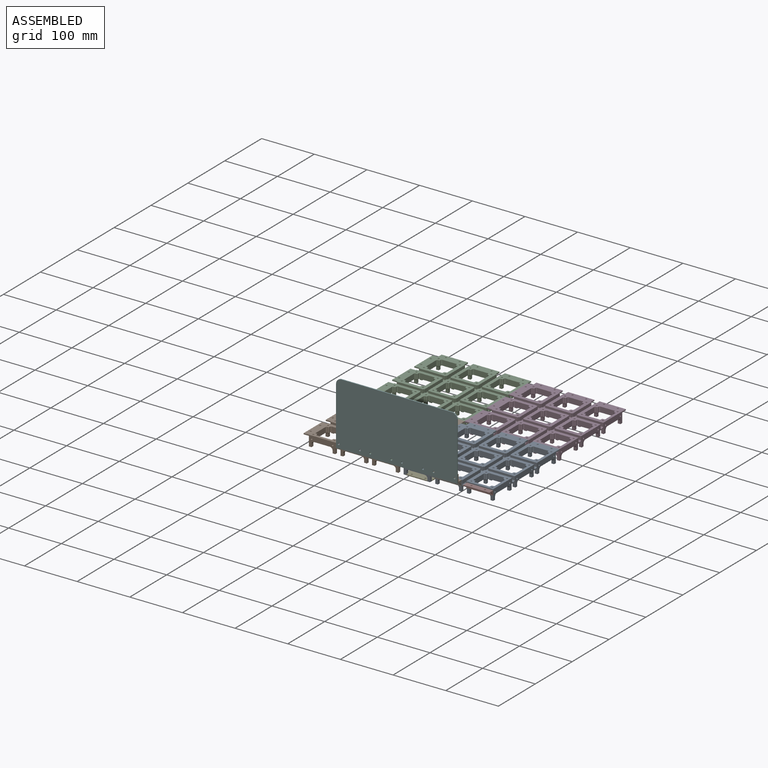
[diagram: assembled view]
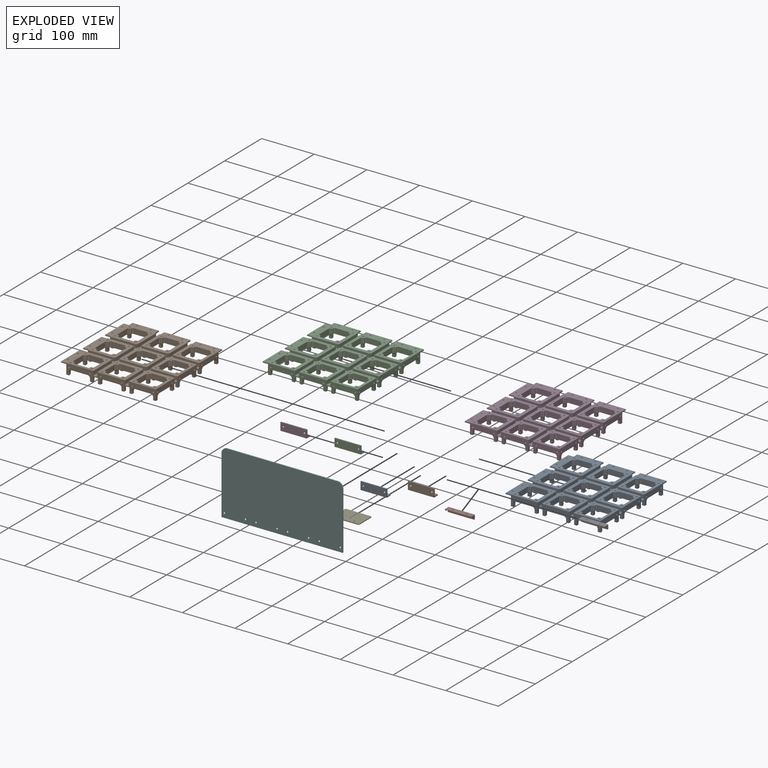
[diagram: exploded view]
GUIDED TOUR — FREECAD ASSEMBLY "BackplaneAssembled"

This assembly has 12 components, labeled P0..P11 below (a component is one placed body or linked part; the same part can appear more than once), held together by 0 modeled joints plus 27 derived contact edges. A joint is a constraint between two components; its type names the relative motion it leaves free:
  CONTACT — a derived adjacency edge — the two components touch in the source model (clearance under 2% of the assembly's diagonal); it is measured from the geometry, not a modeled constraint.
Axis/direction vectors are unit vectors and 'through' points are millimeter coordinates, both in the assembly's world frame.

MATES
  1. CONTACT "contact_0_1": P0 <-> P1, contact direction (1.000, 0.000, 0.000) through (55.00, -10.00, 18.00) mm (derived from contact, not a modeled constraint)
  2. CONTACT "contact_0_2": P0 <-> P2, contact direction (-1.000, 0.000, 0.000) through (-5.00, -10.00, 18.00) mm (derived from contact, not a modeled constraint)
  3. CONTACT "contact_0_5": P0 <-> P5, contact direction (0.000, -1.000, 0.000) through (5.73, -10.00, 24.52) mm (derived from contact, not a modeled constraint)
  4. CONTACT "contact_0_6": P0 <-> P6, contact direction (1.000, 0.000, 0.000) through (55.00, -10.00, 18.00) mm (derived from contact, not a modeled constraint)
  5. CONTACT "contact_0_8": P0 <-> P8, contact direction (0.000, 1.000, 0.000) through (0.00, 0.00, 18.00) mm (derived from contact, not a modeled constraint)
  6. CONTACT "contact_0_9": P0 <-> P9, contact direction (-1.000, 0.000, 0.000) through (-5.00, 0.00, 20.00) mm (derived from contact, not a modeled constraint)
  7. CONTACT "contact_1_5": P1 <-> P5, contact direction (0.000, -1.000, 0.000) through (110.00, -10.00, 18.00) mm (derived from contact, not a modeled constraint)
  8. CONTACT "contact_1_6": P1 <-> P6, contact direction (0.000, 0.000, -1.000) through (110.00, -10.00, 18.00) mm (derived from contact, not a modeled constraint)
  9. CONTACT "contact_1_7": P1 <-> P7, contact direction (1.000, 0.000, 0.000) through (115.00, -10.00, 18.00) mm (derived from contact, not a modeled constraint)
  10. CONTACT "contact_1_8": P1 <-> P8, contact direction (0.000, 1.000, 0.000) through (61.93, 0.00, 16.52) mm (derived from contact, not a modeled constraint)
  11. CONTACT "contact_2_3": P2 <-> P3, contact direction (-1.000, 0.000, 0.000) through (-65.00, -10.00, 18.00) mm (derived from contact, not a modeled constraint)
  12. CONTACT "contact_2_5": P2 <-> P5, contact direction (0.000, -1.000, 0.000) through (-14.27, -10.00, 24.52) mm (derived from contact, not a modeled constraint)
  13. CONTACT "contact_2_8": P2 <-> P8, contact direction (0.000, 0.000, -1.000) through (-10.00, 0.00, 18.00) mm (derived from contact, not a modeled constraint)
  14. CONTACT "contact_2_9": P2 <-> P9, contact direction (-0.334, 0.941, -0.060) through (-10.00, 0.00, 20.00) mm (derived from contact, not a modeled constraint)
  15. CONTACT "contact_3_5": P3 <-> P5, contact direction (0.000, -1.000, 0.000) through (-120.00, -10.00, 18.00) mm (derived from contact, not a modeled constraint)
  16. CONTACT "contact_3_9": P3 <-> P9, contact direction (0.000, 1.000, 0.000) through (-118.07, 0.00, 16.52) mm (derived from contact, not a modeled constraint)
  17. CONTACT "contact_4_8": P4 <-> P8, contact direction (0.000, 1.000, 0.000) through (0.00, 3.50, 3.30) mm (derived from contact, not a modeled constraint)
  18. CONTACT "contact_5_6": P5 <-> P6, contact direction (0.000, 1.000, 0.000) through (110.00, -10.00, 18.00) mm (derived from contact, not a modeled constraint)
  19. CONTACT "contact_5_7": P5 <-> P7, contact direction (1.000, 0.000, 0.000) through (115.00, -10.00, 18.00) mm (derived from contact, not a modeled constraint)
  20. CONTACT "contact_6_7": P6 <-> P7, contact direction (1.000, 0.000, 0.000) through (115.00, 0.00, 10.00) mm (derived from contact, not a modeled constraint)
  21. CONTACT "contact_6_8": P6 <-> P8, contact direction (0.000, 1.000, 0.000) through (66.62, 0.00, 14.00) mm (derived from contact, not a modeled constraint)
  22. CONTACT "contact_7_8": P7 <-> P8, contact direction (-0.334, 0.941, -0.060) through (123.69, 0.00, 13.04) mm (derived from contact, not a modeled constraint)
  23. CONTACT "contact_8_9": P8 <-> P9, contact direction (-1.000, 0.000, 0.000) through (-10.00, 0.00, 19.00) mm (derived from contact, not a modeled constraint)
  24. CONTACT "contact_8_11": P8 <-> P11, contact direction (0.000, 1.000, 0.000) through (50.00, 180.00, 19.00) mm (derived from contact, not a modeled constraint)
  25. CONTACT "contact_9_10": P9 <-> P10, contact direction (0.000, 1.000, 0.000) through (-130.00, 180.00, 19.00) mm (derived from contact, not a modeled constraint)
  26. CONTACT "contact_9_11": P9 <-> P11, contact direction (0.000, 0.000, 1.000) through (-10.00, 175.00, 19.00) mm (derived from contact, not a modeled constraint)
  27. CONTACT "contact_10_11": P10 <-> P11, contact direction (1.000, 0.000, 0.000) through (-10.00, 180.00, 19.00) mm (derived from contact, not a modeled constraint)

ASSEMBLY ORDER
  1. P11 — the base component [order verified]
  2. P8 [order verified]
  3. P6 [order verified]
  4. P1 [order verified]
  5. P0 [order verified]
  6. P7 [order verified]
  7. P2 [order verified]
  8. P3 [order verified]
  9. P10 [order verified]
  10. P9 [order verified]
  11. P4 [order verified]
  12. P5 [order verified]
Order-tag legend:
  [order verified] — this step's position reverses a verified removal order: the component was checked to insert without passing through the ones already placed.

Of the 12 components, 10 carry a construction recipe — the FreeCAD feature program (sketches with constraints, then the solid features that consume them) that regenerates the part from scratch, quoted from this document or from the linked companion document it references; the rest are supplied as boundary geometry only. The tour below walks the components in assembly order: each is shown spotlighted twice — in the assembled view, then in the exploded view, where a leader line traces a displaced component back to its assembled socket (components that stay in place when exploded have no leader line; saturated green if recipe-attached, orange if geometry-only; every other component desaturated gray) — followed by its recipe or geometry summary and the mates that hold it.
NOTE — this tour is split across 6 documents so each fits a 32k-token context. This is document 1: the component sections continue in the remaining 5 documents, each repeating the header above.
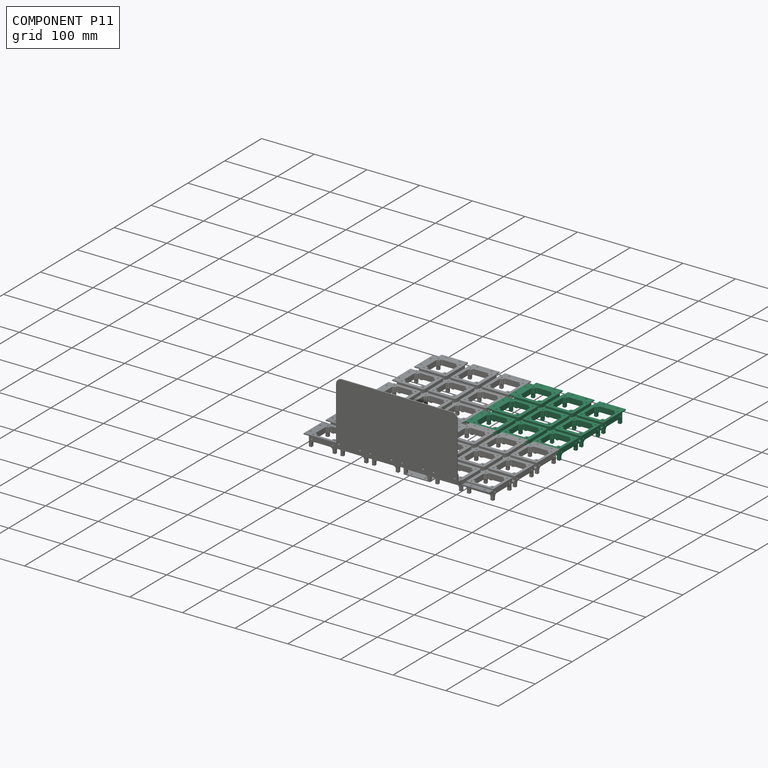
[diagram: component P11 — assembled]
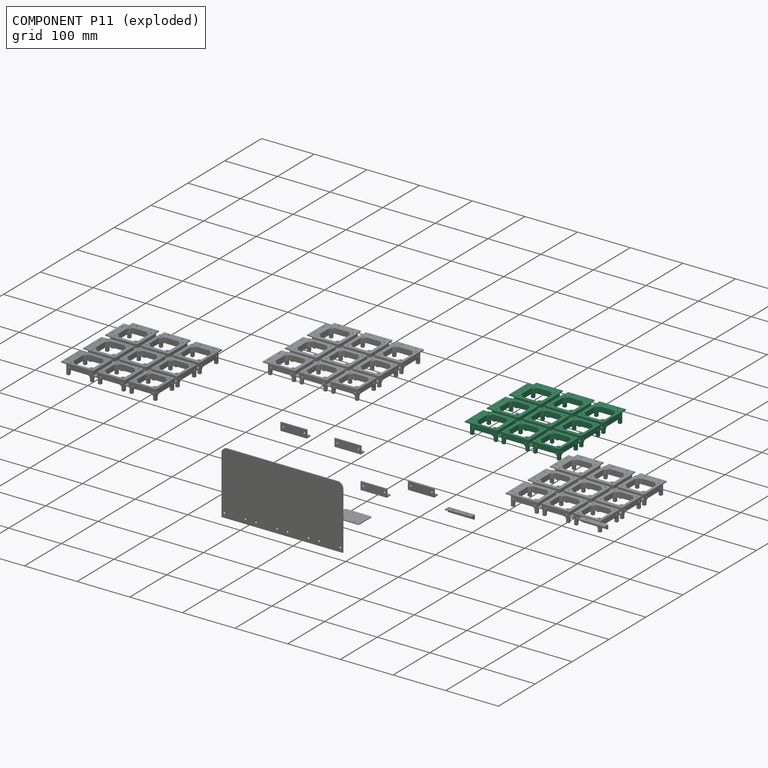
[diagram: component P11 — exploded]
COMPONENT P11 — recipe-attached ("Part003", modeled in this document).
Held by: resting contact with P8 (derived edge); resting contact with P9 (derived edge); resting contact with P10 (derived edge).
Construction recipe (the document's own serialized feature program — sketch geometry with constraints, then the solid features built on it; lengths are millimeters unless a unit is written):

FEATURE [Sketcher::SketchObject] Sketch180
  FullyConstrained = true
  MapMode = 5
  Placement = pos=(0,0,0) rot=(0.57735,0.57735,0.57735;2.0944rad)
  Support = -> [YZ_Plane034]
  sketch-geometry (4):
    g0: LineSegment StartX=0 StartY=0 StartZ=0 EndX=10 EndY=0 EndZ=0
    g1: LineSegment StartX=10 StartY=0 StartZ=0 EndX=10 EndY=10 EndZ=0
    g2: LineSegment StartX=10 StartY=10 StartZ=0 EndX=0 EndY=10 EndZ=0
    g3: LineSegment StartX=0 StartY=10 StartZ=0 EndX=0 EndY=0 EndZ=0
  constraints (11):
    c: Coincident(g0,g1)
    c: Coincident(g1,g2)
    c: Coincident(g2,g3)
    c: Coincident(g3,g0)
    c: Horizontal(g0)
    c: Horizontal(g2)
    c: Vertical(g1)
    c: Vertical(g3)
    c: Coincident(g0,g-1)
    c: DistanceY(g3,g3) = 10
    c: DistanceX(g2,g2) = 10
FEATURE [PartDesign::Pad] Pad030
  Direction = (1,-2e-16,3e-16)
  Length = 50
  Length2 = 10
  Placement = pos=(0,0,0) rot=(0.57735,0.57735,0.57735;2.0944rad)
  Profile = -> Sketch180
  ReferenceAxis = -> Sketch180 [N_Axis]
  Type = 0
FEATURE [Sketcher::SketchObject] Sketch181
  ExternalGeometry = -> [Pad030]
  FullyConstrained = true
  MapMode = 5
  Placement = pos=(0,0,0) rot=(0.57735,0.57735,-0.57735;4.18879rad)
  Support = -> [Pad030]
  sketch-geometry (6):
    g0: LineSegment StartX=8.5 StartY=-10 StartZ=0 EndX=8.5 EndY=-3.5 EndZ=0
    g1: LineSegment StartX=6.5 StartY=-1.5 StartZ=0 EndX=3.5 EndY=-1.5 EndZ=0
    g2: LineSegment StartX=1.5 StartY=-3.5 StartZ=0 EndX=1.5 EndY=-10 EndZ=0
    g3: ArcOfCircle CenterX=6.5 CenterY=-3.5 CenterZ=0 NormalX=0 NormalY=0 NormalZ=1 AngleXU=0 Radius=2 StartAngle=1e-16 EndAngle=1.5708
    g4: ArcOfCircle CenterX=3.5 CenterY=-3.5 CenterZ=0 NormalX=0 NormalY=0 NormalZ=1 AngleXU=0 Radius=2 StartAngle=1.5708 EndAngle=3.14159
    g5: LineSegment StartX=1.5 StartY=-10 StartZ=0 EndX=8.5 EndY=-10 EndZ=0
  constraints (16):
    c: PointOnObject(g0,g-3)
    c: Vertical(g0)
    c: Horizontal(g1)
    c: PointOnObject(g2,g-3)
    c: Vertical(g2)
    c: Tangent(g0,g3) = -1.5708
    c: Tangent(g1,g3) = -1.5708
    c: Tangent(g1,g4) = -1.5708
    c: Tangent(g2,g4) = -1.5708
    c: Radius(g4) = 2
    c: Radius(g3) = 2
    c: Distance(g2,g-5) = 1.5
    c: Distance(g0,g-4) = 1.5
    c: Distance(g1,g-6) = 1.5
    c: Coincident(g5,g2)
    c: Coincident(g5,g0)
FEATURE [PartDesign::Pocket] Pocket151
  BaseFeature = -> Pad030
  Direction = (1,-4e-16,4e-16)
  Length = 5
  Length2 = 5
  Placement = pos=(0,0,0) rot=(0.57735,0.57735,0.57735;2.0944rad)
  Profile = -> Sketch181
  ReferenceAxis = -> Sketch181 [N_Axis]
  Type = 1
FEATURE [PartDesign::Body] Body031  label="BackplaneChannel036"
  Group = -> [Sketch180,Pad030,Sketch181,Pocket151]
  Origin = -> Origin034
  Placement = pos=(0,50,10) rot=(0,0,1;0rad)
  Tip = -> Pocket151
FEATURE [Sketcher::SketchObject] Sketch182
  FullyConstrained = true
  MapMode = 5
  Support = -> [XY_Plane035]
  sketch-geometry (4):
    g0: LineSegment StartX=-25 StartY=25 StartZ=0 EndX=25 EndY=25 EndZ=0
    g1: LineSegment StartX=25 StartY=25 StartZ=0 EndX=25 EndY=-25 EndZ=0
    g2: LineSegment StartX=25 StartY=-25 StartZ=0 EndX=-25 EndY=-25 EndZ=0
    g3: LineSegment StartX=-25 StartY=-25 StartZ=0 EndX=-25 EndY=25 EndZ=0
  constraints (10):
    c: Coincident(g0,g1)
    c: Coincident(g1,g2)
    c: Coincident(g2,g3)
    c: Coincident(g3,g0)
    c: Horizontal(g0)
    c: Vertical(g3)
    c: Symmetric(g2,g1,g-2)
    c: Symmetric(g1,g0,g-1)
    c: DistanceY(g1,g1) = 50
    c: DistanceX(g2,g2) = 50
FEATURE [PartDesign::Pad] Pad031
  Direction = (0,0,1)
  Length = 20
  Length2 = 10
  Profile = -> Sketch182
  ReferenceAxis = -> Sketch182 [N_Axis]
  Type = 0
FEATURE [Sketcher::SketchObject] Sketch183
  ExternalGeometry = -> [Pad031]
  FullyConstrained = true
  MapMode = 5
  Placement = pos=(0,0,20) rot=(0,0,1;0rad)
  Support = -> [Pad031]
  sketch-geometry (36):
    g0: LineSegment StartX=-18 StartY=15 StartZ=0 EndX=-17 EndY=15 EndZ=0
    g1: LineSegment StartX=20 StartY=13 StartZ=0 EndX=20 EndY=-13 EndZ=0
    g2: LineSegment StartX=18 StartY=-15 StartZ=0 EndX=17 EndY=-15 EndZ=0
    g3: LineSegment StartX=-20 StartY=-13 StartZ=0 EndX=-20 EndY=13 EndZ=0
    g4: LineSegment StartX=-13 StartY=20 StartZ=0 EndX=13 EndY=20 EndZ=0
    g5: LineSegment StartX=15 StartY=18 StartZ=0 EndX=15 EndY=17 EndZ=0
    g6: LineSegment StartX=13 StartY=-20 StartZ=0 EndX=-13 EndY=-20 EndZ=0
    g7: LineSegment StartX=-15 StartY=-18 StartZ=0 EndX=-15 EndY=-17 EndZ=0
    g8: LineSegment StartX=17 StartY=15 StartZ=0 EndX=18 EndY=15 EndZ=0
    g9: LineSegment StartX=-15 StartY=17 StartZ=0 EndX=-15 EndY=18 EndZ=0
    g10: LineSegment StartX=-17 StartY=-15 StartZ=0 EndX=-18 EndY=-15 EndZ=0
    g11: LineSegment StartX=15 StartY=-17 StartZ=0 EndX=15 EndY=-18 EndZ=0
    g12: ArcOfCircle CenterX=-13 CenterY=-18 CenterZ=0 NormalX=0 NormalY=0 NormalZ=1 AngleXU=0 Radius=2 StartAngle=3.14159 EndAngle=4.71239
    g13: GeomPoint X=-15 Y=-20 Z=0
    g14: ArcOfCircle CenterX=13 CenterY=-18 CenterZ=0 NormalX=0 NormalY=0 NormalZ=1 AngleXU=0 Radius=2 StartAngle=4.71239 EndAngle=6.28319
    g15: GeomPoint X=15 Y=-20 Z=0
    g16: ArcOfCircle CenterX=17 CenterY=-17 CenterZ=0 NormalX=0 NormalY=0 NormalZ=1 AngleXU=0 Radius=2 StartAngle=1.5708 EndAngle=3.14159
    g17: GeomPoint X=15 Y=-15 Z=0
    g18: ArcOfCircle CenterX=18 CenterY=-13 CenterZ=0 NormalX=0 NormalY=0 NormalZ=1 AngleXU=0 Radius=2 StartAngle=4.71239 EndAngle=6.28319
    g19: GeomPoint X=20 Y=-15 Z=0
    g20: ArcOfCircle CenterX=18 CenterY=13 CenterZ=0 NormalX=0 NormalY=0 NormalZ=1 AngleXU=0 Radius=2 StartAngle=0 EndAngle=1.5708
    g21: GeomPoint X=20 Y=15 Z=0
    g22: ArcOfCircle CenterX=17 CenterY=17 CenterZ=0 NormalX=0 NormalY=0 NormalZ=1 AngleXU=0 Radius=2 StartAngle=3.14159 EndAngle=4.71239
    g23: GeomPoint X=15 Y=15 Z=0
    g24: ArcOfCircle CenterX=13 CenterY=18 CenterZ=0 NormalX=0 NormalY=0 NormalZ=1 AngleXU=0 Radius=2 StartAngle=4e-16 EndAngle=1.5708
    g25: GeomPoint X=15 Y=20 Z=0
    g26: ArcOfCircle CenterX=-13 CenterY=18 CenterZ=0 NormalX=0 NormalY=0 NormalZ=1 AngleXU=0 Radius=2 StartAngle=1.5708 EndAngle=3.14159
    g27: GeomPoint X=-15 Y=20 Z=0
    g28: ArcOfCircle CenterX=-17 CenterY=17 CenterZ=0 NormalX=0 NormalY=0 NormalZ=1 AngleXU=0 Radius=2 StartAngle=4.71239 EndAngle=6.28319
    g29: GeomPoint X=-15 Y=15 Z=0
    g30: ArcOfCircle CenterX=-18 CenterY=13 CenterZ=0 NormalX=0 NormalY=0 NormalZ=1 AngleXU=0 Radius=2 StartAngle=1.5708 EndAngle=3.14159
    g31: GeomPoint X=-20 Y=15 Z=0
    g32: ArcOfCircle CenterX=-18 CenterY=-13 CenterZ=0 NormalX=0 NormalY=0 NormalZ=1 AngleXU=0 Radius=2 StartAngle=3.14159 EndAngle=4.71239
    g33: GeomPoint X=-20 Y=-15 Z=0
    g34: ArcOfCircle CenterX=-17 CenterY=-17 CenterZ=0 NormalX=0 NormalY=0 NormalZ=1 AngleXU=0 Radius=2 StartAngle=0 EndAngle=1.5708
    g35: GeomPoint X=-15 Y=-15 Z=0
  constraints (80):
    c: Horizontal(g2)
    c: Vertical(g3)
    c: Symmetric(g21,g31,g-2)
    c: Symmetric(g21,g19,g-1)
    c: DistanceX(g31,g21) = 40
    c: DistanceY(g19,g21) = 30
    c: Horizontal(g4)
    c: Vertical(g7)
    c: Symmetric(g13,g15,g-2)
    c: Symmetric(g15,g25,g-1)
    c: DistanceY(g15,g25) = 40
    c: Vertical(g9)
    c: Vertical(g5)
    c: Vertical(g11)
    c: Horizontal(g10)
    c: Horizontal(g8)
    c: Horizontal(g0)
    c: DistanceX(g13,g15) = 30
    c: DistanceY(g33,g31) = 30
    c: DistanceX(g27,g25) = 30
    c: PointOnObject(g13,g7)
    c: PointOnObject(g13,g6)
    c: Tangent(g7,g12) = 1.5708
    c: Tangent(g6,g12) = 1.5708
    c: Radius(g12) = 2
    c: PointOnObject(g15,g11)
    c: PointOnObject(g15,g6)
    c: Tangent(g11,g14) = 1.5708
    c: Tangent(g6,g14) = 1.5708
    c: PointOnObject(g17,g11)
    c: PointOnObject(g17,g2)
    c: Tangent(g11,g16) = -1.5708
    c: Tangent(g2,g16) = -1.5708
    c: PointOnObject(g19,g2)
    c: PointOnObject(g19,g1)
    c: Tangent(g2,g18) = 1.5708
    c: Tangent(g1,g18) = 1.5708
    c: PointOnObject(g21,g1)
    c: PointOnObject(g21,g8)
    c: Tangent(g1,g20) = 1.5708
    c: Tangent(g8,g20) = 1.5708
    c: PointOnObject(g23,g8)
    c: PointOnObject(g23,g5)
    c: Tangent(g8,g22) = -1.5708
    c: Tangent(g5,g22) = -1.5708
    c: PointOnObject(g25,g5)
    c: PointOnObject(g25,g4)
    c: Tangent(g5,g24) = 1.5708
    c: Tangent(g4,g24) = 1.5708
    c: PointOnObject(g27,g9)
    c: PointOnObject(g27,g4)
    c: Tangent(g9,g26) = 1.5708
    c: Tangent(g4,g26) = 1.5708
    c: PointOnObject(g29,g9)
    c: PointOnObject(g29,g0)
    c: Tangent(g9,g28) = -1.5708
    c: Tangent(g0,g28) = -1.5708
    c: PointOnObject(g31,g0)
    c: PointOnObject(g31,g3)
    c: Tangent(g0,g30) = 1.5708
    c: Tangent(g3,g30) = 1.5708
    c: PointOnObject(g33,g3)
    c: PointOnObject(g33,g10)
    c: Tangent(g3,g32) = 1.5708
    c: Tangent(g10,g32) = 1.5708
    c: PointOnObject(g35,g10)
    c: PointOnObject(g35,g7)
    c: Tangent(g10,g34) = -1.5708
    c: Tangent(g7,g34) = -1.5708
    c: Radius(g34) = 2
    c: Radius(g32) = 2
    c: Radius(g30) = 2
    c: Radius(g28) = 2
    c: Radius(g26) = 2
    c: Radius(g24) = 2
    c: Radius(g22) = 2
    c: Radius(g20) = 2
    c: Radius(g18) = 2
    c: Radius(g16) = 2
    c: Radius(g14) = 2
FEATURE [PartDesign::Pocket] Pocket152
  BaseFeature = -> Pad031
  Direction = (0,0,-1)
  Length = 5
  Length2 = 5
  Profile = -> Sketch183
  ReferenceAxis = -> Sketch183 [N_Axis]
  Type = 1
FEATURE [Sketcher::SketchObject] Sketch184
  ExternalGeometry = -> [Pocket152]
  FullyConstrained = true
  MapMode = 5
  Placement = pos=(25,0,0) rot=(0.57735,0.57735,0.57735;2.0944rad)
  Support = -> [Pocket152]
  sketch-geometry (6):
    g0: LineSegment StartX=-15 StartY=10 StartZ=0 EndX=15 EndY=10 EndZ=0
    g1: LineSegment StartX=20 StartY=5 StartZ=0 EndX=20 EndY=0 EndZ=0
    g2: LineSegment StartX=20 StartY=0 StartZ=0 EndX=-20 EndY=0 EndZ=0
    g3: LineSegment StartX=-20 StartY=0 StartZ=0 EndX=-20 EndY=5 EndZ=0
    g4: ArcOfCircle CenterX=15 CenterY=5 CenterZ=0 NormalX=0 NormalY=0 NormalZ=1 AngleXU=0 Radius=5 StartAngle=1.11001e-11 EndAngle=1.5708
    g5: ArcOfCircle CenterX=-15 CenterY=5 CenterZ=0 NormalX=0 NormalY=0 NormalZ=1 AngleXU=0 Radius=5 StartAngle=1.5708 EndAngle=3.14159
  constraints (15):
    c: Coincident(g1,g2)
    c: Coincident(g2,g3)
    c: Vertical(g1)
    c: Vertical(g3)
    c: PointOnObject(g1,g-1)
    c: Tangent(g1,g4) = 1.5708
    c: Tangent(g0,g4) = 1.5708
    c: Tangent(g0,g5) = 1.5708
    c: Tangent(g3,g5) = 1.5708
    c: Horizontal(g0)
    c: DistanceX(g2,g2) = 40
    c: Symmetric(g2,g1,g-2)
    c: Distance(g-1,g0) = 10
    c: Radius(g5) = 5
    c: Radius(g4) = 5
FEATURE [PartDesign::Pocket] Pocket153
  BaseFeature = -> Pocket152
  Direction = (-1,0,0)
  Length = 5
  Length2 = 5
  Profile = -> Sketch184
  ReferenceAxis = -> Sketch184 [N_Axis]
  Type = 1
FEATURE [Sketcher::SketchObject] Sketch185
  FullyConstrained = true
  MapMode = 5
  Placement = pos=(0,-25,0) rot=(1,0,0;1.5708rad)
  Support = -> [Pocket152]
  sketch-geometry (6):
    g0: LineSegment StartX=-15 StartY=10 StartZ=0 EndX=15 EndY=10 EndZ=0
    g1: LineSegment StartX=20 StartY=5 StartZ=0 EndX=20 EndY=0 EndZ=0
    g2: LineSegment StartX=20 StartY=0 StartZ=0 EndX=-20 EndY=0 EndZ=0
    g3: LineSegment StartX=-20 StartY=0 StartZ=0 EndX=-20 EndY=5 EndZ=0
    g4: ArcOfCircle CenterX=15 CenterY=5 CenterZ=0 NormalX=0 NormalY=0 NormalZ=1 AngleXU=0 Radius=5 StartAngle=1.11e-11 EndAngle=1.5708
    g5: ArcOfCircle CenterX=-15 CenterY=5 CenterZ=0 NormalX=0 NormalY=0 NormalZ=1 AngleXU=0 Radius=5 StartAngle=1.5708 EndAngle=3.14159
  constraints (15):
    c: Coincident(g1,g2)
    c: Coincident(g2,g3)
    c: Horizontal(g0)
    c: Vertical(g1)
    c: Vertical(g3)
    c: Symmetric(g2,g1,g-2)
    c: PointOnObject(g1,g-1)
    c: Tangent(g0,g4) = 1.5708
    c: Tangent(g1,g4) = 1.5708
    c: Tangent(g0,g5) = 1.5708
    c: Tangent(g3,g5) = 1.5708
    c: DistanceX(g2,g2) = 40
    c: Distance(g-1,g0) = 10
    c: Radius(g5) = 5
    c: Radius(g4) = 5
FEATURE [PartDesign::Pocket] Pocket154
  BaseFeature = -> Pocket153
  Direction = (0,1,-2e-16)
  Length = 5
  Length2 = 5
  Profile = -> Sketch185
  ReferenceAxis = -> Sketch185 [N_Axis]
  Type = 1
FEATURE [Sketcher::SketchObject] Sketch186
  FullyConstrained = false
  MapMode = 5
  Placement = pos=(0,0,20) rot=(0,0,1;0rad)
  sketch-geometry (4):
    g0: Circle CenterX=-20 CenterY=20 CenterZ=0 NormalX=0 NormalY=0 NormalZ=1 AngleXU=0 Radius=1.55
    g1: Circle CenterX=20 CenterY=20 CenterZ=0 NormalX=0 NormalY=0 NormalZ=1 AngleXU=0 Radius=1.55
    g2: Circle CenterX=20 CenterY=-20 CenterZ=0 NormalX=0 NormalY=0 NormalZ=1 AngleXU=0 Radius=1.55
    g3: Circle CenterX=-20 CenterY=-20 CenterZ=0 NormalX=0 NormalY=0 NormalZ=1 AngleXU=0 Radius=1.55
  constraints (4):
    c: Diameter(g0) = 3.1
    c: Diameter(g1) = 3.1
    c: Diameter(g2) = 3.1
    c: Diameter(g3) = 3.1
FEATURE [PartDesign::Pocket] Pocket155
  BaseFeature = -> Pocket154
  Direction = (0,0,-1)
  Length = 5
  Length2 = 5
  Profile = -> Sketch186
  ReferenceAxis = -> Sketch186 [N_Axis]
  Type = 0
FEATURE [Sketcher::SketchObject] Sketch187
  FullyConstrained = true
  MapMode = 5
  Support = -> [XY_Plane036]
  sketch-geometry (4):
    g0: LineSegment StartX=-25 StartY=25 StartZ=0 EndX=25 EndY=25 EndZ=0
    g1: LineSegment StartX=25 StartY=25 StartZ=0 EndX=25 EndY=-25 EndZ=0
    g2: LineSegment StartX=25 StartY=-25 StartZ=0 EndX=-25 EndY=-25 EndZ=0
    g3: LineSegment StartX=-25 StartY=-25 StartZ=0 EndX=-25 EndY=25 EndZ=0
  constraints (10):
    c: Coincident(g0,g1)
    c: Coincident(g1,g2)
    c: Coincident(g2,g3)
    c: Coincident(g3,g0)
    c: Horizontal(g0)
    c: Vertical(g3)
    c: Symmetric(g2,g1,g-2)
    c: Symmetric(g1,g0,g-1)
    c: DistanceY(g1,g1) = 50
    c: DistanceX(g2,g2) = 50
FEATURE [PartDesign::Pad] Pad032
  Direction = (0,0,1)
  Length = 20
  Length2 = 10
  Profile = -> Sketch187
  ReferenceAxis = -> Sketch187 [N_Axis]
  Type = 0
FEATURE [Sketcher::SketchObject] Sketch188
  ExternalGeometry = -> [Pad032]
  FullyConstrained = true
  MapMode = 5
  Placement = pos=(0,0,20) rot=(0,0,1;0rad)
  Support = -> [Pad032]
  sketch-geometry (36):
    g0: LineSegment StartX=-18 StartY=15 StartZ=0 EndX=-17 EndY=15 EndZ=0
    g1: LineSegment StartX=20 StartY=13 StartZ=0 EndX=20 EndY=-13 EndZ=0
    g2: LineSegment StartX=18 StartY=-15 StartZ=0 EndX=17 EndY=-15 EndZ=0
    g3: LineSegment StartX=-20 StartY=-13 StartZ=0 EndX=-20 EndY=13 EndZ=0
    g4: LineSegment StartX=-13 StartY=20 StartZ=0 EndX=13 EndY=20 EndZ=0
    g5: LineSegment StartX=15 StartY=18 StartZ=0 EndX=15 EndY=17 EndZ=0
    g6: LineSegment StartX=13 StartY=-20 StartZ=0 EndX=-13 EndY=-20 EndZ=0
    g7: LineSegment StartX=-15 StartY=-18 StartZ=0 EndX=-15 EndY=-17 EndZ=0
    g8: LineSegment StartX=17 StartY=15 StartZ=0 EndX=18 EndY=15 EndZ=0
    g9: LineSegment StartX=-15 StartY=17 StartZ=0 EndX=-15 EndY=18 EndZ=0
    g10: LineSegment StartX=-17 StartY=-15 StartZ=0 EndX=-18 EndY=-15 EndZ=0
    g11: LineSegment StartX=15 StartY=-17 StartZ=0 EndX=15 EndY=-18 EndZ=0
    g12: ArcOfCircle CenterX=-13 CenterY=-18 CenterZ=0 NormalX=0 NormalY=0 NormalZ=1 AngleXU=0 Radius=2 StartAngle=3.14159 EndAngle=4.71239
    g13: GeomPoint X=-15 Y=-20 Z=0
    g14: ArcOfCircle CenterX=13 CenterY=-18 CenterZ=0 NormalX=0 NormalY=0 NormalZ=1 AngleXU=0 Radius=2 StartAngle=4.71239 EndAngle=6.28319
    g15: GeomPoint X=15 Y=-20 Z=0
    g16: ArcOfCircle CenterX=17 CenterY=-17 CenterZ=0 NormalX=0 NormalY=0 NormalZ=1 AngleXU=0 Radius=2 StartAngle=1.5708 EndAngle=3.14159
    g17: GeomPoint X=15 Y=-15 Z=0
    g18: ArcOfCircle CenterX=18 CenterY=-13 CenterZ=0 NormalX=0 NormalY=0 NormalZ=1 AngleXU=0 Radius=2 StartAngle=4.71239 EndAngle=6.28319
    g19: GeomPoint X=20 Y=-15 Z=0
    g20: ArcOfCircle CenterX=18 CenterY=13 CenterZ=0 NormalX=0 NormalY=0 NormalZ=1 AngleXU=0 Radius=2 StartAngle=0 EndAngle=1.5708
    g21: GeomPoint X=20 Y=15 Z=0
    g22: ArcOfCircle CenterX=17 CenterY=17 CenterZ=0 NormalX=0 NormalY=0 NormalZ=1 AngleXU=0 Radius=2 StartAngle=3.14159 EndAngle=4.71239
    g23: GeomPoint X=15 Y=15 Z=0
    g24: ArcOfCircle CenterX=13 CenterY=18 CenterZ=0 NormalX=0 NormalY=0 NormalZ=1 AngleXU=0 Radius=2 StartAngle=4e-16 EndAngle=1.5708
    g25: GeomPoint X=15 Y=20 Z=0
    g26: ArcOfCircle CenterX=-13 CenterY=18 CenterZ=0 NormalX=0 NormalY=0 NormalZ=1 AngleXU=0 Radius=2 StartAngle=1.5708 EndAngle=3.14159
    g27: GeomPoint X=-15 Y=20 Z=0
    g28: ArcOfCircle CenterX=-17 CenterY=17 CenterZ=0 NormalX=0 NormalY=0 NormalZ=1 AngleXU=0 Radius=2 StartAngle=4.71239 EndAngle=6.28319
    g29: GeomPoint X=-15 Y=15 Z=0
    g30: ArcOfCircle CenterX=-18 CenterY=13 CenterZ=0 NormalX=0 NormalY=0 NormalZ=1 AngleXU=0 Radius=2 StartAngle=1.5708 EndAngle=3.14159
    g31: GeomPoint X=-20 Y=15 Z=0
    g32: ArcOfCircle CenterX=-18 CenterY=-13 CenterZ=0 NormalX=0 NormalY=0 NormalZ=1 AngleXU=0 Radius=2 StartAngle=3.14159 EndAngle=4.71239
    g33: GeomPoint X=-20 Y=-15 Z=0
    g34: ArcOfCircle CenterX=-17 CenterY=-17 CenterZ=0 NormalX=0 NormalY=0 NormalZ=1 AngleXU=0 Radius=2 StartAngle=0 EndAngle=1.5708
    g35: GeomPoint X=-15 Y=-15 Z=0
  constraints (80):
    c: Horizontal(g2)
    c: Vertical(g3)
    c: Symmetric(g21,g31,g-2)
    c: Symmetric(g21,g19,g-1)
    c: DistanceX(g31,g21) = 40
    c: DistanceY(g19,g21) = 30
    c: Horizontal(g4)
    c: Vertical(g7)
    c: Symmetric(g13,g15,g-2)
    c: Symmetric(g15,g25,g-1)
    c: DistanceY(g15,g25) = 40
    c: Vertical(g9)
    c: Vertical(g5)
    c: Vertical(g11)
    c: Horizontal(g10)
    c: Horizontal(g8)
    c: Horizontal(g0)
    c: DistanceX(g13,g15) = 30
    c: DistanceY(g33,g31) = 30
    c: DistanceX(g27,g25) = 30
    c: PointOnObject(g13,g7)
    c: PointOnObject(g13,g6)
    c: Tangent(g7,g12) = 1.5708
    c: Tangent(g6,g12) = 1.5708
    c: Radius(g12) = 2
    c: PointOnObject(g15,g11)
    c: PointOnObject(g15,g6)
    c: Tangent(g11,g14) = 1.5708
    c: Tangent(g6,g14) = 1.5708
    c: PointOnObject(g17,g11)
    c: PointOnObject(g17,g2)
    c: Tangent(g11,g16) = -1.5708
    c: Tangent(g2,g16) = -1.5708
    c: PointOnObject(g19,g2)
    c: PointOnObject(g19,g1)
    c: Tangent(g2,g18) = 1.5708
    c: Tangent(g1,g18) = 1.5708
    c: PointOnObject(g21,g1)
    c: PointOnObject(g21,g8)
    c: Tangent(g1,g20) = 1.5708
    c: Tangent(g8,g20) = 1.5708
    c: PointOnObject(g23,g8)
    c: PointOnObject(g23,g5)
    c: Tangent(g8,g22) = -1.5708
    c: Tangent(g5,g22) = -1.5708
    c: PointOnObject(g25,g5)
    c: PointOnObject(g25,g4)
    c: Tangent(g5,g24) = 1.5708
    c: Tangent(g4,g24) = 1.5708
    c: PointOnObject(g27,g9)
    c: PointOnObject(g27,g4)
    c: Tangent(g9,g26) = 1.5708
    c: Tangent(g4,g26) = 1.5708
    c: PointOnObject(g29,g9)
    c: PointOnObject(g29,g0)
    c: Tangent(g9,g28) = -1.5708
    c: Tangent(g0,g28) = -1.5708
    c: PointOnObject(g31,g0)
    c: PointOnObject(g31,g3)
    c: Tangent(g0,g30) = 1.5708
    c: Tangent(g3,g30) = 1.5708
    c: PointOnObject(g33,g3)
    c: PointOnObject(g33,g10)
    c: Tangent(g3,g32) = 1.5708
    c: Tangent(g10,g32) = 1.5708
    c: PointOnObject(g35,g10)
    c: PointOnObject(g35,g7)
    c: Tangent(g10,g34) = -1.5708
    c: Tangent(g7,g34) = -1.5708
    c: Radius(g34) = 2
    c: Radius(g32) = 2
    c: Radius(g30) = 2
    c: Radius(g28) = 2
    c: Radius(g26) = 2
    c: Radius(g24) = 2
    c: Radius(g22) = 2
    c: Radius(g20) = 2
    c: Radius(g18) = 2
    c: Radius(g16) = 2
    c: Radius(g14) = 2
FEATURE [PartDesign::Pocket] Pocket156
  BaseFeature = -> Pad032
  Direction = (0,0,-1)
  Length = 5
  Length2 = 5
  Profile = -> Sketch188
  ReferenceAxis = -> Sketch188 [N_Axis]
  Type = 1
FEATURE [Sketcher::SketchObject] Sketch189
  ExternalGeometry = -> [Pocket156]
  FullyConstrained = true
  MapMode = 5
  Placement = pos=(25,0,0) rot=(0.57735,0.57735,0.57735;2.0944rad)
  Support = -> [Pocket156]
  sketch-geometry (6):
    g0: LineSegment StartX=-15 StartY=10 StartZ=0 EndX=15 EndY=10 EndZ=0
    g1: LineSegment StartX=20 StartY=5 StartZ=0 EndX=20 EndY=0 EndZ=0
    g2: LineSegment StartX=20 StartY=0 StartZ=0 EndX=-20 EndY=0 EndZ=0
    g3: LineSegment StartX=-20 StartY=0 StartZ=0 EndX=-20 EndY=5 EndZ=0
    g4: ArcOfCircle CenterX=15 CenterY=5 CenterZ=0 NormalX=0 NormalY=0 NormalZ=1 AngleXU=0 Radius=5 StartAngle=1.11001e-11 EndAngle=1.5708
    g5: ArcOfCircle CenterX=-15 CenterY=5 CenterZ=0 NormalX=0 NormalY=0 NormalZ=1 AngleXU=0 Radius=5 StartAngle=1.5708 EndAngle=3.14159
  constraints (15):
    c: Coincident(g1,g2)
    c: Coincident(g2,g3)
    c: Vertical(g1)
    c: Vertical(g3)
    c: PointOnObject(g1,g-1)
    c: Tangent(g1,g4) = 1.5708
    c: Tangent(g0,g4) = 1.5708
    c: Tangent(g0,g5) = 1.5708
    c: Tangent(g3,g5) = 1.5708
    c: Horizontal(g0)
    c: DistanceX(g2,g2) = 40
    c: Symmetric(g2,g1,g-2)
    c: Distance(g-1,g0) = 10
    c: Radius(g5) = 5
    c: Radius(g4) = 5
FEATURE [PartDesign::Pocket] Pocket157
  BaseFeature = -> Pocket156
  Direction = (-1,0,0)
  Length = 5
  Length2 = 5
  Profile = -> Sketch189
  ReferenceAxis = -> Sketch189 [N_Axis]
  Type = 1
FEATURE [Sketcher::SketchObject] Sketch190
  FullyConstrained = true
  MapMode = 5
  Placement = pos=(0,-25,0) rot=(1,0,0;1.5708rad)
  Support = -> [Pocket156]
  sketch-geometry (6):
    g0: LineSegment StartX=-15 StartY=10 StartZ=0 EndX=15 EndY=10 EndZ=0
    g1: LineSegment StartX=20 StartY=5 StartZ=0 EndX=20 EndY=0 EndZ=0
    g2: LineSegment StartX=20 StartY=0 StartZ=0 EndX=-20 EndY=0 EndZ=0
    g3: LineSegment StartX=-20 StartY=0 StartZ=0 EndX=-20 EndY=5 EndZ=0
    g4: ArcOfCircle CenterX=15 CenterY=5 CenterZ=0 NormalX=0 NormalY=0 NormalZ=1 AngleXU=0 Radius=5 StartAngle=1.11e-11 EndAngle=1.5708
    g5: ArcOfCircle CenterX=-15 CenterY=5 CenterZ=0 NormalX=0 NormalY=0 NormalZ=1 AngleXU=0 Radius=5 StartAngle=1.5708 EndAngle=3.14159
  constraints (15):
    c: Coincident(g1,g2)
    c: Coincident(g2,g3)
    c: Horizontal(g0)
    c: Vertical(g1)
    c: Vertical(g3)
    c: Symmetric(g2,g1,g-2)
    c: PointOnObject(g1,g-1)
    c: Tangent(g0,g4) = 1.5708
    c: Tangent(g1,g4) = 1.5708
    c: Tangent(g0,g5) = 1.5708
    c: Tangent(g3,g5) = 1.5708
    c: DistanceX(g2,g2) = 40
    c: Distance(g-1,g0) = 10
    c: Radius(g5) = 5
    c: Radius(g4) = 5
FEATURE [PartDesign::Pocket] Pocket158
  BaseFeature = -> Pocket157
  Direction = (0,1,-2e-16)
  Length = 5
  Length2 = 5
  Profile = -> Sketch190
  ReferenceAxis = -> Sketch190 [N_Axis]
  Type = 1
FEATURE [Sketcher::SketchObject] Sketch191
  FullyConstrained = false
  MapMode = 5
  Placement = pos=(0,0,20) rot=(0,0,1;0rad)
  sketch-geometry (4):
    g0: Circle CenterX=-20 CenterY=20 CenterZ=0 NormalX=0 NormalY=0 NormalZ=1 AngleXU=0 Radius=1.55
    g1: Circle CenterX=20 CenterY=20 CenterZ=0 NormalX=0 NormalY=0 NormalZ=1 AngleXU=0 Radius=1.55
    g2: Circle CenterX=20 CenterY=-20 CenterZ=0 NormalX=0 NormalY=0 NormalZ=1 AngleXU=0 Radius=1.55
    g3: Circle CenterX=-20 CenterY=-20 CenterZ=0 NormalX=0 NormalY=0 NormalZ=1 AngleXU=0 Radius=1.55
  constraints (4):
    c: Diameter(g0) = 3.1
    c: Diameter(g1) = 3.1
    c: Diameter(g2) = 3.1
    c: Diameter(g3) = 3.1
FEATURE [PartDesign::Pocket] Pocket159
  BaseFeature = -> Pocket158
  Direction = (0,0,-1)
  Length = 5
  Length2 = 5
  Profile = -> Sketch191
  ReferenceAxis = -> Sketch191 [N_Axis]
  Type = 0
FEATURE [PartDesign::Body] Body033  label="BackplaneBlock028"
  Group = -> [Sketch187,Pad032,Sketch188,Pocket156,Sketch189,Sketch190,Pocket157,Pocket158,Sketch191,Pocket159]
  Origin = -> Origin036
  Placement = pos=(85,85,0) rot=(0,0,1;0rad)
  Tip = -> Pocket159
FEATURE [Sketcher::SketchObject] Sketch192
  ExternalGeometry = -> [Pocket155]
  FullyConstrained = true
  MapMode = 5
  Placement = pos=(0,-25,0) rot=(1,0,0;1.5708rad)
  Support = -> [Pocket155]
  sketch-geometry (2):
    g0: Circle CenterX=-20 CenterY=14 CenterZ=0 NormalX=0 NormalY=0 NormalZ=1 AngleXU=0 Radius=1.55
    g1: Circle CenterX=20 CenterY=14 CenterZ=0 NormalX=0 NormalY=0 NormalZ=1 AngleXU=0 Radius=1.55
  constraints (6):
    c: Diameter(g0) = 3.1
    c: Diameter(g1) = 3.1
    c: Distance(g0,g-5) = 5
    c: Distance(g0,g-3) = 6
    c: Distance(g1,g-3) = 6
    c: Distance(g1,g-4) = 5
FEATURE [PartDesign::Pocket] Pocket160
  BaseFeature = -> Pocket155
  Direction = (0,1,-2e-16)
  Length = 3
  Length2 = 5
  Profile = -> Sketch192
  ReferenceAxis = -> Sketch192 [N_Axis]
  Type = 0
FEATURE [Sketcher::SketchObject] Sketch193
  FullyConstrained = true
  MapMode = 5
  Support = -> [XY_Plane037]
  sketch-geometry (4):
    g0: LineSegment StartX=-25 StartY=25 StartZ=0 EndX=25 EndY=25 EndZ=0
    g1: LineSegment StartX=25 StartY=25 StartZ=0 EndX=25 EndY=-25 EndZ=0
    g2: LineSegment StartX=25 StartY=-25 StartZ=0 EndX=-25 EndY=-25 EndZ=0
    g3: LineSegment StartX=-25 StartY=-25 StartZ=0 EndX=-25 EndY=25 EndZ=0
  constraints (10):
    c: Coincident(g0,g1)
    c: Coincident(g1,g2)
    c: Coincident(g2,g3)
    c: Coincident(g3,g0)
    c: Horizontal(g0)
    c: Vertical(g3)
    c: Symmetric(g2,g1,g-2)
    c: Symmetric(g1,g0,g-1)
    c: DistanceY(g1,g1) = 50
    c: DistanceX(g2,g2) = 50
FEATURE [PartDesign::Pad] Pad033
  Direction = (0,0,1)
  Length = 20
  Length2 = 10
  Profile = -> Sketch193
  ReferenceAxis = -> Sketch193 [N_Axis]
  Type = 0
FEATURE [Sketcher::SketchObject] Sketch194
  ExternalGeometry = -> [Pad033]
  FullyConstrained = true
  MapMode = 5
  Placement = pos=(0,0,20) rot=(0,0,1;0rad)
  Support = -> [Pad033]
  sketch-geometry (36):
    g0: LineSegment StartX=-18 StartY=15 StartZ=0 EndX=-17 EndY=15 EndZ=0
    g1: LineSegment StartX=20 StartY=13 StartZ=0 EndX=20 EndY=-13 EndZ=0
    g2: LineSegment StartX=18 StartY=-15 StartZ=0 EndX=17 EndY=-15 EndZ=0
    g3: LineSegment StartX=-20 StartY=-13 StartZ=0 EndX=-20 EndY=13 EndZ=0
    g4: LineSegment StartX=-13 StartY=20 StartZ=0 EndX=13 EndY=20 EndZ=0
    g5: LineSegment StartX=15 StartY=18 StartZ=0 EndX=15 EndY=17 EndZ=0
    g6: LineSegment StartX=13 StartY=-20 StartZ=0 EndX=-13 EndY=-20 EndZ=0
    g7: LineSegment StartX=-15 StartY=-18 StartZ=0 EndX=-15 EndY=-17 EndZ=0
    g8: LineSegment StartX=17 StartY=15 StartZ=0 EndX=18 EndY=15 EndZ=0
    g9: LineSegment StartX=-15 StartY=17 StartZ=0 EndX=-15 EndY=18 EndZ=0
    g10: LineSegment StartX=-17 StartY=-15 StartZ=0 EndX=-18 EndY=-15 EndZ=0
    g11: LineSegment StartX=15 StartY=-17 StartZ=0 EndX=15 EndY=-18 EndZ=0
    g12: ArcOfCircle CenterX=-13 CenterY=-18 CenterZ=0 NormalX=0 NormalY=0 NormalZ=1 AngleXU=0 Radius=2 StartAngle=3.14159 EndAngle=4.71239
    g13: GeomPoint X=-15 Y=-20 Z=0
    g14: ArcOfCircle CenterX=13 CenterY=-18 CenterZ=0 NormalX=0 NormalY=0 NormalZ=1 AngleXU=0 Radius=2 StartAngle=4.71239 EndAngle=6.28319
    g15: GeomPoint X=15 Y=-20 Z=0
    g16: ArcOfCircle CenterX=17 CenterY=-17 CenterZ=0 NormalX=0 NormalY=0 NormalZ=1 AngleXU=0 Radius=2 StartAngle=1.5708 EndAngle=3.14159
    g17: GeomPoint X=15 Y=-15 Z=0
    g18: ArcOfCircle CenterX=18 CenterY=-13 CenterZ=0 NormalX=0 NormalY=0 NormalZ=1 AngleXU=0 Radius=2 StartAngle=4.71239 EndAngle=6.28319
    g19: GeomPoint X=20 Y=-15 Z=0
    g20: ArcOfCircle CenterX=18 CenterY=13 CenterZ=0 NormalX=0 NormalY=0 NormalZ=1 AngleXU=0 Radius=2 StartAngle=0 EndAngle=1.5708
    g21: GeomPoint X=20 Y=15 Z=0
    g22: ArcOfCircle CenterX=17 CenterY=17 CenterZ=0 NormalX=0 NormalY=0 NormalZ=1 AngleXU=0 Radius=2 StartAngle=3.14159 EndAngle=4.71239
    g23: GeomPoint X=15 Y=15 Z=0
    g24: ArcOfCircle CenterX=13 CenterY=18 CenterZ=0 NormalX=0 NormalY=0 NormalZ=1 AngleXU=0 Radius=2 StartAngle=4e-16 EndAngle=1.5708
    g25: GeomPoint X=15 Y=20 Z=0
    g26: ArcOfCircle CenterX=-13 CenterY=18 CenterZ=0 NormalX=0 NormalY=0 NormalZ=1 AngleXU=0 Radius=2 StartAngle=1.5708 EndAngle=3.14159
    g27: GeomPoint X=-15 Y=20 Z=0
    g28: ArcOfCircle CenterX=-17 CenterY=17 CenterZ=0 NormalX=0 NormalY=0 NormalZ=1 AngleXU=0 Radius=2 StartAngle=4.71239 EndAngle=6.28319
    g29: GeomPoint X=-15 Y=15 Z=0
    g30: ArcOfCircle CenterX=-18 CenterY=13 CenterZ=0 NormalX=0 NormalY=0 NormalZ=1 AngleXU=0 Radius=2 StartAngle=1.5708 EndAngle=3.14159
    g31: GeomPoint X=-20 Y=15 Z=0
    g32: ArcOfCircle CenterX=-18 CenterY=-13 CenterZ=0 NormalX=0 NormalY=0 NormalZ=1 AngleXU=0 Radius=2 StartAngle=3.14159 EndAngle=4.71239
    g33: GeomPoint X=-20 Y=-15 Z=0
    g34: ArcOfCircle CenterX=-17 CenterY=-17 CenterZ=0 NormalX=0 NormalY=0 NormalZ=1 AngleXU=0 Radius=2 StartAngle=0 EndAngle=1.5708
    g35: GeomPoint X=-15 Y=-15 Z=0
  constraints (80):
    c: Horizontal(g2)
    c: Vertical(g3)
    c: Symmetric(g21,g31,g-2)
    c: Symmetric(g21,g19,g-1)
    c: DistanceX(g31,g21) = 40
    c: DistanceY(g19,g21) = 30
    c: Horizontal(g4)
    c: Vertical(g7)
    c: Symmetric(g13,g15,g-2)
    c: Symmetric(g15,g25,g-1)
    c: DistanceY(g15,g25) = 40
    c: Vertical(g9)
    c: Vertical(g5)
    c: Vertical(g11)
    c: Horizontal(g10)
    c: Horizontal(g8)
    c: Horizontal(g0)
    c: DistanceX(g13,g15) = 30
    c: DistanceY(g33,g31) = 30
    c: DistanceX(g27,g25) = 30
    c: PointOnObject(g13,g7)
    c: PointOnObject(g13,g6)
    c: Tangent(g7,g12) = 1.5708
    c: Tangent(g6,g12) = 1.5708
    c: Radius(g12) = 2
    c: PointOnObject(g15,g11)
    c: PointOnObject(g15,g6)
    c: Tangent(g11,g14) = 1.5708
    c: Tangent(g6,g14) = 1.5708
    c: PointOnObject(g17,g11)
    c: PointOnObject(g17,g2)
    c: Tangent(g11,g16) = -1.5708
    c: Tangent(g2,g16) = -1.5708
    c: PointOnObject(g19,g2)
    c: PointOnObject(g19,g1)
    c: Tangent(g2,g18) = 1.5708
    c: Tangent(g1,g18) = 1.5708
    c: PointOnObject(g21,g1)
    c: PointOnObject(g21,g8)
    c: Tangent(g1,g20) = 1.5708
    c: Tangent(g8,g20) = 1.5708
    c: PointOnObject(g23,g8)
    c: PointOnObject(g23,g5)
    c: Tangent(g8,g22) = -1.5708
    c: Tangent(g5,g22) = -1.5708
    c: PointOnObject(g25,g5)
    c: PointOnObject(g25,g4)
    c: Tangent(g5,g24) = 1.5708
    c: Tangent(g4,g24) = 1.5708
    c: PointOnObject(g27,g9)
    c: PointOnObject(g27,g4)
    c: Tangent(g9,g26) = 1.5708
    c: Tangent(g4,g26) = 1.5708
    c: PointOnObject(g29,g9)
    c: PointOnObject(g29,g0)
    c: Tangent(g9,g28) = -1.5708
    c: Tangent(g0,g28) = -1.5708
    c: PointOnObject(g31,g0)
    c: PointOnObject(g31,g3)
    c: Tangent(g0,g30) = 1.5708
    c: Tangent(g3,g30) = 1.5708
    c: PointOnObject(g33,g3)
    c: PointOnObject(g33,g10)
    c: Tangent(g3,g32) = 1.5708
    c: Tangent(g10,g32) = 1.5708
    c: PointOnObject(g35,g10)
    c: PointOnObject(g35,g7)
    c: Tangent(g10,g34) = -1.5708
    c: Tangent(g7,g34) = -1.5708
    c: Radius(g34) = 2
    c: Radius(g32) = 2
    c: Radius(g30) = 2
    c: Radius(g28) = 2
    c: Radius(g26) = 2
    c: Radius(g24) = 2
    c: Radius(g22) = 2
    c: Radius(g20) = 2
    c: Radius(g18) = 2
    c: Radius(g16) = 2
    c: Radius(g14) = 2
FEATURE [PartDesign::Pocket] Pocket161
  BaseFeature = -> Pad033
  Direction = (0,0,-1)
  Length = 5
  Length2 = 5
  Profile = -> Sketch194
  ReferenceAxis = -> Sketch194 [N_Axis]
  Type = 1
FEATURE [Sketcher::SketchObject] Sketch195
  ExternalGeometry = -> [Pocket161]
  FullyConstrained = true
  MapMode = 5
  Placement = pos=(25,0,0) rot=(0.57735,0.57735,0.57735;2.0944rad)
  Support = -> [Pocket161]
  sketch-geometry (6):
    g0: LineSegment StartX=-15 StartY=10 StartZ=0 EndX=15 EndY=10 EndZ=0
    g1: LineSegment StartX=20 StartY=5 StartZ=0 EndX=20 EndY=0 EndZ=0
    g2: LineSegment StartX=20 StartY=0 StartZ=0 EndX=-20 EndY=0 EndZ=0
    g3: LineSegment StartX=-20 StartY=0 StartZ=0 EndX=-20 EndY=5 EndZ=0
    g4: ArcOfCircle CenterX=15 CenterY=5 CenterZ=0 NormalX=0 NormalY=0 NormalZ=1 AngleXU=0 Radius=5 StartAngle=1.11001e-11 EndAngle=1.5708
    g5: ArcOfCircle CenterX=-15 CenterY=5 CenterZ=0 NormalX=0 NormalY=0 NormalZ=1 AngleXU=0 Radius=5 StartAngle=1.5708 EndAngle=3.14159
  constraints (15):
    c: Coincident(g1,g2)
    c: Coincident(g2,g3)
    c: Vertical(g1)
    c: Vertical(g3)
    c: PointOnObject(g1,g-1)
    c: Tangent(g1,g4) = 1.5708
    c: Tangent(g0,g4) = 1.5708
    c: Tangent(g0,g5) = 1.5708
    c: Tangent(g3,g5) = 1.5708
    c: Horizontal(g0)
    c: DistanceX(g2,g2) = 40
    c: Symmetric(g2,g1,g-2)
    c: Distance(g-1,g0) = 10
    c: Radius(g5) = 5
    c: Radius(g4) = 5
FEATURE [PartDesign::Pocket] Pocket162
  BaseFeature = -> Pocket161
  Direction = (-1,0,0)
  Length = 5
  Length2 = 5
  Profile = -> Sketch195
  ReferenceAxis = -> Sketch195 [N_Axis]
  Type = 1
FEATURE [Sketcher::SketchObject] Sketch196
  FullyConstrained = true
  MapMode = 5
  Placement = pos=(0,-25,0) rot=(1,0,0;1.5708rad)
  Support = -> [Pocket161]
  sketch-geometry (6):
    g0: LineSegment StartX=-15 StartY=10 StartZ=0 EndX=15 EndY=10 EndZ=0
    g1: LineSegment StartX=20 StartY=5 StartZ=0 EndX=20 EndY=0 EndZ=0
    g2: LineSegment StartX=20 StartY=0 StartZ=0 EndX=-20 EndY=0 EndZ=0
    g3: LineSegment StartX=-20 StartY=0 StartZ=0 EndX=-20 EndY=5 EndZ=0
    g4: ArcOfCircle CenterX=15 CenterY=5 CenterZ=0 NormalX=0 NormalY=0 NormalZ=1 AngleXU=0 Radius=5 StartAngle=1.11e-11 EndAngle=1.5708
    g5: ArcOfCircle CenterX=-15 CenterY=5 CenterZ=0 NormalX=0 NormalY=0 NormalZ=1 AngleXU=0 Radius=5 StartAngle=1.5708 EndAngle=3.14159
  constraints (15):
    c: Coincident(g1,g2)
    c: Coincident(g2,g3)
    c: Horizontal(g0)
    c: Vertical(g1)
    c: Vertical(g3)
    c: Symmetric(g2,g1,g-2)
    c: PointOnObject(g1,g-1)
    c: Tangent(g0,g4) = 1.5708
    c: Tangent(g1,g4) = 1.5708
    c: Tangent(g0,g5) = 1.5708
    c: Tangent(g3,g5) = 1.5708
    c: DistanceX(g2,g2) = 40
    c: Distance(g-1,g0) = 10
    c: Radius(g5) = 5
    c: Radius(g4) = 5
FEATURE [PartDesign::Pocket] Pocket163
  BaseFeature = -> Pocket162
  Direction = (0,1,-2e-16)
  Length = 5
  Length2 = 5
  Profile = -> Sketch196
  ReferenceAxis = -> Sketch196 [N_Axis]
  Type = 1
FEATURE [Sketcher::SketchObject] Sketch197
  FullyConstrained = false
  MapMode = 5
  Placement = pos=(0,0,20) rot=(0,0,1;0rad)
  sketch-geometry (4):
    g0: Circle CenterX=-20 CenterY=20 CenterZ=0 NormalX=0 NormalY=0 NormalZ=1 AngleXU=0 Radius=1.55
    g1: Circle CenterX=20 CenterY=20 CenterZ=0 NormalX=0 NormalY=0 NormalZ=1 AngleXU=0 Radius=1.55
    g2: Circle CenterX=20 CenterY=-20 CenterZ=0 NormalX=0 NormalY=0 NormalZ=1 AngleXU=0 Radius=1.55
    g3: Circle CenterX=-20 CenterY=-20 CenterZ=0 NormalX=0 NormalY=0 NormalZ=1 AngleXU=0 Radius=1.55
  constraints (4):
    c: Diameter(g0) = 3.1
    c: Diameter(g1) = 3.1
    c: Diameter(g2) = 3.1
    c: Diameter(g3) = 3.1
FEATURE [PartDesign::Pocket] Pocket164
  BaseFeature = -> Pocket163
  Direction = (0,0,-1)
  Length = 5
  Length2 = 5
  Profile = -> Sketch197
  ReferenceAxis = -> Sketch197 [N_Axis]
  Type = 0
FEATURE [Sketcher::SketchObject] Sketch198
  ExternalGeometry = -> [Pocket164]
  FullyConstrained = true
  MapMode = 5
  Placement = pos=(0,-25,0) rot=(1,0,0;1.5708rad)
  Support = -> [Pocket164]
  sketch-geometry (2):
    g0: Circle CenterX=-20 CenterY=14 CenterZ=0 NormalX=0 NormalY=0 NormalZ=1 AngleXU=0 Radius=1.55
    g1: Circle CenterX=20 CenterY=14 CenterZ=0 NormalX=0 NormalY=0 NormalZ=1 AngleXU=0 Radius=1.55
  constraints (6):
    c: Diameter(g0) = 3.1
    c: Diameter(g1) = 3.1
    c: Distance(g0,g-5) = 5
    c: Distance(g0,g-3) = 6
    c: Distance(g1,g-3) = 6
    c: Distance(g1,g-4) = 5
FEATURE [PartDesign::Pocket] Pocket165
  BaseFeature = -> Pocket164
  Direction = (0,1,-2e-16)
  Length = 3
  Length2 = 5
  Profile = -> Sketch198
  ReferenceAxis = -> Sketch198 [N_Axis]
  Type = 0
FEATURE [PartDesign::Body] Body034  label="BackplaneBlock029"
  Group = -> [Sketch193,Pad033,Sketch194,Pocket161,Sketch195,Sketch196,Pocket162,Pocket163,Sketch197,Pocket164,Sketch198,Pocket165]
  Origin = -> Origin037
  Placement = pos=(85,145,0) rot=(0,0,1;3.14159rad)
  Tip = -> Pocket165
FEATURE [Sketcher::SketchObject] Sketch199
  FullyConstrained = true
  MapMode = 5
  Support = -> [XY_Plane038]
  sketch-geometry (4):
    g0: LineSegment StartX=-25 StartY=25 StartZ=0 EndX=25 EndY=25 EndZ=0
    g1: LineSegment StartX=25 StartY=25 StartZ=0 EndX=25 EndY=-25 EndZ=0
    g2: LineSegment StartX=25 StartY=-25 StartZ=0 EndX=-25 EndY=-25 EndZ=0
    g3: LineSegment StartX=-25 StartY=-25 StartZ=0 EndX=-25 EndY=25 EndZ=0
  constraints (10):
    c: Coincident(g0,g1)
    c: Coincident(g1,g2)
    c: Coincident(g2,g3)
    c: Coincident(g3,g0)
    c: Horizontal(g0)
    c: Vertical(g3)
    c: Symmetric(g2,g1,g-2)
    c: Symmetric(g1,g0,g-1)
    c: DistanceY(g1,g1) = 50
    c: DistanceX(g2,g2) = 50
FEATURE [PartDesign::Pad] Pad034
  Direction = (0,0,1)
  Length = 20
  Length2 = 10
  Profile = -> Sketch199
  ReferenceAxis = -> Sketch199 [N_Axis]
  Type = 0
FEATURE [Sketcher::SketchObject] Sketch200
  ExternalGeometry = -> [Pad034]
  FullyConstrained = true
  MapMode = 5
  Placement = pos=(0,0,20) rot=(0,0,1;0rad)
  Support = -> [Pad034]
  sketch-geometry (36):
    g0: LineSegment StartX=-18 StartY=15 StartZ=0 EndX=-17 EndY=15 EndZ=0
    g1: LineSegment StartX=20 StartY=13 StartZ=0 EndX=20 EndY=-13 EndZ=0
    g2: LineSegment StartX=18 StartY=-15 StartZ=0 EndX=17 EndY=-15 EndZ=0
    g3: LineSegment StartX=-20 StartY=-13 StartZ=0 EndX=-20 EndY=13 EndZ=0
    g4: LineSegment StartX=-13 StartY=20 StartZ=0 EndX=13 EndY=20 EndZ=0
    g5: LineSegment StartX=15 StartY=18 StartZ=0 EndX=15 EndY=17 EndZ=0
    g6: LineSegment StartX=13 StartY=-20 StartZ=0 EndX=-13 EndY=-20 EndZ=0
    g7: LineSegment StartX=-15 StartY=-18 StartZ=0 EndX=-15 EndY=-17 EndZ=0
    g8: LineSegment StartX=17 StartY=15 StartZ=0 EndX=18 EndY=15 EndZ=0
    g9: LineSegment StartX=-15 StartY=17 StartZ=0 EndX=-15 EndY=18 EndZ=0
    g10: LineSegment StartX=-17 StartY=-15 StartZ=0 EndX=-18 EndY=-15 EndZ=0
    g11: LineSegment StartX=15 StartY=-17 StartZ=0 EndX=15 EndY=-18 EndZ=0
    g12: ArcOfCircle CenterX=-13 CenterY=-18 CenterZ=0 NormalX=0 NormalY=0 NormalZ=1 AngleXU=0 Radius=2 StartAngle=3.14159 EndAngle=4.71239
    g13: GeomPoint X=-15 Y=-20 Z=0
    g14: ArcOfCircle CenterX=13 CenterY=-18 CenterZ=0 NormalX=0 NormalY=0 NormalZ=1 AngleXU=0 Radius=2 StartAngle=4.71239 EndAngle=6.28319
    g15: GeomPoint X=15 Y=-20 Z=0
    g16: ArcOfCircle CenterX=17 CenterY=-17 CenterZ=0 NormalX=0 NormalY=0 NormalZ=1 AngleXU=0 Radius=2 StartAngle=1.5708 EndAngle=3.14159
    g17: GeomPoint X=15 Y=-15 Z=0
    g18: ArcOfCircle CenterX=18 CenterY=-13 CenterZ=0 NormalX=0 NormalY=0 NormalZ=1 AngleXU=0 Radius=2 StartAngle=4.71239 EndAngle=6.28319
    g19: GeomPoint X=20 Y=-15 Z=0
    g20: ArcOfCircle CenterX=18 CenterY=13 CenterZ=0 NormalX=0 NormalY=0 NormalZ=1 AngleXU=0 Radius=2 StartAngle=0 EndAngle=1.5708
    g21: GeomPoint X=20 Y=15 Z=0
    g22: ArcOfCircle CenterX=17 CenterY=17 CenterZ=0 NormalX=0 NormalY=0 NormalZ=1 AngleXU=0 Radius=2 StartAngle=3.14159 EndAngle=4.71239
    g23: GeomPoint X=15 Y=15 Z=0
    g24: ArcOfCircle CenterX=13 CenterY=18 CenterZ=0 NormalX=0 NormalY=0 NormalZ=1 AngleXU=0 Radius=2 StartAngle=4e-16 EndAngle=1.5708
    g25: GeomPoint X=15 Y=20 Z=0
    g26: ArcOfCircle CenterX=-13 CenterY=18 CenterZ=0 NormalX=0 NormalY=0 NormalZ=1 AngleXU=0 Radius=2 StartAngle=1.5708 EndAngle=3.14159
    g27: GeomPoint X=-15 Y=20 Z=0
    g28: ArcOfCircle CenterX=-17 CenterY=17 CenterZ=0 NormalX=0 NormalY=0 NormalZ=1 AngleXU=0 Radius=2 StartAngle=4.71239 EndAngle=6.28319
    g29: GeomPoint X=-15 Y=15 Z=0
    g30: ArcOfCircle CenterX=-18 CenterY=13 CenterZ=0 NormalX=0 NormalY=0 NormalZ=1 AngleXU=0 Radius=2 StartAngle=1.5708 EndAngle=3.14159
    g31: GeomPoint X=-20 Y=15 Z=0
    g32: ArcOfCircle CenterX=-18 CenterY=-13 CenterZ=0 NormalX=0 NormalY=0 NormalZ=1 AngleXU=0 Radius=2 StartAngle=3.14159 EndAngle=4.71239
    g33: GeomPoint X=-20 Y=-15 Z=0
    g34: ArcOfCircle CenterX=-17 CenterY=-17 CenterZ=0 NormalX=0 NormalY=0 NormalZ=1 AngleXU=0 Radius=2 StartAngle=0 EndAngle=1.5708
    g35: GeomPoint X=-15 Y=-15 Z=0
  constraints (80):
    c: Horizontal(g2)
    c: Vertical(g3)
    c: Symmetric(g21,g31,g-2)
    c: Symmetric(g21,g19,g-1)
    c: DistanceX(g31,g21) = 40
    c: DistanceY(g19,g21) = 30
    c: Horizontal(g4)
    c: Vertical(g7)
    c: Symmetric(g13,g15,g-2)
    c: Symmetric(g15,g25,g-1)
    c: DistanceY(g15,g25) = 40
    c: Vertical(g9)
    c: Vertical(g5)
    c: Vertical(g11)
    c: Horizontal(g10)
    c: Horizontal(g8)
    c: Horizontal(g0)
    c: DistanceX(g13,g15) = 30
    c: DistanceY(g33,g31) = 30
    c: DistanceX(g27,g25) = 30
    c: PointOnObject(g13,g7)
    c: PointOnObject(g13,g6)
    c: Tangent(g7,g12) = 1.5708
    c: Tangent(g6,g12) = 1.5708
    c: Radius(g12) = 2
    c: PointOnObject(g15,g11)
    c: PointOnObject(g15,g6)
    c: Tangent(g11,g14) = 1.5708
    c: Tangent(g6,g14) = 1.5708
    c: PointOnObject(g17,g11)
    c: PointOnObject(g17,g2)
    c: Tangent(g11,g16) = -1.5708
    c: Tangent(g2,g16) = -1.5708
    c: PointOnObject(g19,g2)
    c: PointOnObject(g19,g1)
    c: Tangent(g2,g18) = 1.5708
    c: Tangent(g1,g18) = 1.5708
    c: PointOnObject(g21,g1)
    c: PointOnObject(g21,g8)
    c: Tangent(g1,g20) = 1.5708
    c: Tangent(g8,g20) = 1.5708
    c: PointOnObject(g23,g8)
    c: PointOnObject(g23,g5)
    c: Tangent(g8,g22) = -1.5708
    c: Tangent(g5,g22) = -1.5708
    c: PointOnObject(g25,g5)
    c: PointOnObject(g25,g4)
    c: Tangent(g5,g24) = 1.5708
    c: Tangent(g4,g24) = 1.5708
    c: PointOnObject(g27,g9)
    c: PointOnObject(g27,g4)
    c: Tangent(g9,g26) = 1.5708
    c: Tangent(g4,g26) = 1.5708
    c: PointOnObject(g29,g9)
    c: PointOnObject(g29,g0)
    c: Tangent(g9,g28) = -1.5708
    c: Tangent(g0,g28) = -1.5708
    c: PointOnObject(g31,g0)
    c: PointOnObject(g31,g3)
    c: Tangent(g0,g30) = 1.5708
    c: Tangent(g3,g30) = 1.5708
    c: PointOnObject(g33,g3)
    c: PointOnObject(g33,g10)
    c: Tangent(g3,g32) = 1.5708
    c: Tangent(g10,g32) = 1.5708
    c: PointOnObject(g35,g10)
    c: PointOnObject(g35,g7)
    c: Tangent(g10,g34) = -1.5708
    c: Tangent(g7,g34) = -1.5708
    c: Radius(g34) = 2
    c: Radius(g32) = 2
    c: Radius(g30) = 2
    c: Radius(g28) = 2
    c: Radius(g26) = 2
    c: Radius(g24) = 2
    c: Radius(g22) = 2
    c: Radius(g20) = 2
    c: Radius(g18) = 2
    c: Radius(g16) = 2
    c: Radius(g14) = 2
FEATURE [PartDesign::Pocket] Pocket166
  BaseFeature = -> Pad034
  Direction = (0,0,-1)
  Length = 5
  Length2 = 5
  Profile = -> Sketch200
  ReferenceAxis = -> Sketch200 [N_Axis]
  Type = 1
FEATURE [Sketcher::SketchObject] Sketch201
  ExternalGeometry = -> [Pocket166]
  FullyConstrained = true
  MapMode = 5
  Placement = pos=(25,0,0) rot=(0.57735,0.57735,0.57735;2.0944rad)
  Support = -> [Pocket166]
  sketch-geometry (6):
    g0: LineSegment StartX=-15 StartY=10 StartZ=0 EndX=15 EndY=10 EndZ=0
    g1: LineSegment StartX=20 StartY=5 StartZ=0 EndX=20 EndY=0 EndZ=0
    g2: LineSegment StartX=20 StartY=0 StartZ=0 EndX=-20 EndY=0 EndZ=0
    g3: LineSegment StartX=-20 StartY=0 StartZ=0 EndX=-20 EndY=5 EndZ=0
    g4: ArcOfCircle CenterX=15 CenterY=5 CenterZ=0 NormalX=0 NormalY=0 NormalZ=1 AngleXU=0 Radius=5 StartAngle=1.11001e-11 EndAngle=1.5708
    g5: ArcOfCircle CenterX=-15 CenterY=5 CenterZ=0 NormalX=0 NormalY=0 NormalZ=1 AngleXU=0 Radius=5 StartAngle=1.5708 EndAngle=3.14159
  constraints (15):
    c: Coincident(g1,g2)
    c: Coincident(g2,g3)
    c: Vertical(g1)
    c: Vertical(g3)
    c: PointOnObject(g1,g-1)
    c: Tangent(g1,g4) = 1.5708
    c: Tangent(g0,g4) = 1.5708
    c: Tangent(g0,g5) = 1.5708
    c: Tangent(g3,g5) = 1.5708
    c: Horizontal(g0)
    c: DistanceX(g2,g2) = 40
    c: Symmetric(g2,g1,g-2)
    c: Distance(g-1,g0) = 10
    c: Radius(g5) = 5
    c: Radius(g4) = 5
FEATURE [PartDesign::Pocket] Pocket167
  BaseFeature = -> Pocket166
  Direction = (-1,0,0)
  Length = 5
  Length2 = 5
  Profile = -> Sketch201
  ReferenceAxis = -> Sketch201 [N_Axis]
  Type = 1
FEATURE [Sketcher::SketchObject] Sketch202
  FullyConstrained = true
  MapMode = 5
  Placement = pos=(0,-25,0) rot=(1,0,0;1.5708rad)
  Support = -> [Pocket166]
  sketch-geometry (6):
    g0: LineSegment StartX=-15 StartY=10 StartZ=0 EndX=15 EndY=10 EndZ=0
    g1: LineSegment StartX=20 StartY=5 StartZ=0 EndX=20 EndY=0 EndZ=0
    g2: LineSegment StartX=20 StartY=0 StartZ=0 EndX=-20 EndY=0 EndZ=0
    g3: LineSegment StartX=-20 StartY=0 StartZ=0 EndX=-20 EndY=5 EndZ=0
    g4: ArcOfCircle CenterX=15 CenterY=5 CenterZ=0 NormalX=0 NormalY=0 NormalZ=1 AngleXU=0 Radius=5 StartAngle=1.11e-11 EndAngle=1.5708
    g5: ArcOfCircle CenterX=-15 CenterY=5 CenterZ=0 NormalX=0 NormalY=0 NormalZ=1 AngleXU=0 Radius=5 StartAngle=1.5708 EndAngle=3.14159
  constraints (15):
    c: Coincident(g1,g2)
    c: Coincident(g2,g3)
    c: Horizontal(g0)
    c: Vertical(g1)
    c: Vertical(g3)
    c: Symmetric(g2,g1,g-2)
    c: PointOnObject(g1,g-1)
    c: Tangent(g0,g4) = 1.5708
    c: Tangent(g1,g4) = 1.5708
    c: Tangent(g0,g5) = 1.5708
    c: Tangent(g3,g5) = 1.5708
    c: DistanceX(g2,g2) = 40
    c: Distance(g-1,g0) = 10
    c: Radius(g5) = 5
    c: Radius(g4) = 5
FEATURE [PartDesign::Pocket] Pocket168
  BaseFeature = -> Pocket167
  Direction = (0,1,-2e-16)
  Length = 5
  Length2 = 5
  Profile = -> Sketch202
  ReferenceAxis = -> Sketch202 [N_Axis]
  Type = 1
FEATURE [Sketcher::SketchObject] Sketch203
  FullyConstrained = false
  MapMode = 5
  Placement = pos=(0,0,20) rot=(0,0,1;0rad)
  sketch-geometry (4):
    g0: Circle CenterX=-20 CenterY=20 CenterZ=0 NormalX=0 NormalY=0 NormalZ=1 AngleXU=0 Radius=1.55
    g1: Circle CenterX=20 CenterY=20 CenterZ=0 NormalX=0 NormalY=0 NormalZ=1 AngleXU=0 Radius=1.55
    g2: Circle CenterX=20 CenterY=-20 CenterZ=0 NormalX=0 NormalY=0 NormalZ=1 AngleXU=0 Radius=1.55
    g3: Circle CenterX=-20 CenterY=-20 CenterZ=0 NormalX=0 NormalY=0 NormalZ=1 AngleXU=0 Radius=1.55
  constraints (4):
    c: Diameter(g0) = 3.1
    c: Diameter(g1) = 3.1
    c: Diameter(g2) = 3.1
    c: Diameter(g3) = 3.1
FEATURE [PartDesign::Pocket] Pocket169
  BaseFeature = -> Pocket168
  Direction = (0,0,-1)
  Length = 5
  Length2 = 5
  Profile = -> Sketch203
  ReferenceAxis = -> Sketch203 [N_Axis]
  Type = 0
FEATURE [Sketcher::SketchObject] Sketch204
  ExternalGeometry = -> [Pocket169]
  FullyConstrained = true
  MapMode = 5
  Placement = pos=(0,-25,0) rot=(1,0,0;1.5708rad)
  Support = -> [Pocket169]
  sketch-geometry (2):
    g0: Circle CenterX=-20 CenterY=14 CenterZ=0 NormalX=0 NormalY=0 NormalZ=1 AngleXU=0 Radius=1.55
    g1: Circle CenterX=20 CenterY=14 CenterZ=0 NormalX=0 NormalY=0 NormalZ=1 AngleXU=0 Radius=1.55
  constraints (6):
    c: Diameter(g0) = 3.1
    c: Diameter(g1) = 3.1
    c: Distance(g0,g-5) = 5
    c: Distance(g0,g-3) = 6
    c: Distance(g1,g-3) = 6
    c: Distance(g1,g-4) = 5
FEATURE [PartDesign::Pocket] Pocket170
  BaseFeature = -> Pocket169
  Direction = (0,1,-2e-16)
  Length = 3
  Length2 = 5
  Profile = -> Sketch204
  ReferenceAxis = -> Sketch204 [N_Axis]
  Type = 0
FEATURE [PartDesign::Body] Body035  label="BackplaneBlock030"
  Group = -> [Sketch199,Pad034,Sketch200,Pocket166,Sketch201,Sketch202,Pocket167,Pocket168,Sketch203,Pocket169,Sketch204,Pocket170]
  Origin = -> Origin038
  Placement = pos=(25,85,0) rot=(0,0,-1;1.5708rad)
  Tip = -> Pocket170
FEATURE [Sketcher::SketchObject] Sketch205
  FullyConstrained = true
  MapMode = 5
  Support = -> [XY_Plane039]
  sketch-geometry (4):
    g0: LineSegment StartX=-25 StartY=25 StartZ=0 EndX=25 EndY=25 EndZ=0
    g1: LineSegment StartX=25 StartY=25 StartZ=0 EndX=25 EndY=-25 EndZ=0
    g2: LineSegment StartX=25 StartY=-25 StartZ=0 EndX=-25 EndY=-25 EndZ=0
    g3: LineSegment StartX=-25 StartY=-25 StartZ=0 EndX=-25 EndY=25 EndZ=0
  constraints (10):
    c: Coincident(g0,g1)
    c: Coincident(g1,g2)
    c: Coincident(g2,g3)
    c: Coincident(g3,g0)
    c: Horizontal(g0)
    c: Vertical(g3)
    c: Symmetric(g2,g1,g-2)
    c: Symmetric(g1,g0,g-1)
    c: DistanceY(g1,g1) = 50
    c: DistanceX(g2,g2) = 50
FEATURE [PartDesign::Pad] Pad035
  Direction = (0,0,1)
  Length = 20
  Length2 = 10
  Profile = -> Sketch205
  ReferenceAxis = -> Sketch205 [N_Axis]
  Type = 0
FEATURE [Sketcher::SketchObject] Sketch206
  ExternalGeometry = -> [Pad035]
  FullyConstrained = true
  MapMode = 5
  Placement = pos=(0,0,20) rot=(0,0,1;0rad)
  Support = -> [Pad035]
  sketch-geometry (36):
    g0: LineSegment StartX=-18 StartY=15 StartZ=0 EndX=-17 EndY=15 EndZ=0
    g1: LineSegment StartX=20 StartY=13 StartZ=0 EndX=20 EndY=-13 EndZ=0
    g2: LineSegment StartX=18 StartY=-15 StartZ=0 EndX=17 EndY=-15 EndZ=0
    g3: LineSegment StartX=-20 StartY=-13 StartZ=0 EndX=-20 EndY=13 EndZ=0
    g4: LineSegment StartX=-13 StartY=20 StartZ=0 EndX=13 EndY=20 EndZ=0
    g5: LineSegment StartX=15 StartY=18 StartZ=0 EndX=15 EndY=17 EndZ=0
    g6: LineSegment StartX=13 StartY=-20 StartZ=0 EndX=-13 EndY=-20 EndZ=0
    g7: LineSegment StartX=-15 StartY=-18 StartZ=0 EndX=-15 EndY=-17 EndZ=0
    g8: LineSegment StartX=17 StartY=15 StartZ=0 EndX=18 EndY=15 EndZ=0
    g9: LineSegment StartX=-15 StartY=17 StartZ=0 EndX=-15 EndY=18 EndZ=0
    g10: LineSegment StartX=-17 StartY=-15 StartZ=0 EndX=-18 EndY=-15 EndZ=0
    g11: LineSegment StartX=15 StartY=-17 StartZ=0 EndX=15 EndY=-18 EndZ=0
    g12: ArcOfCircle CenterX=-13 CenterY=-18 CenterZ=0 NormalX=0 NormalY=0 NormalZ=1 AngleXU=0 Radius=2 StartAngle=3.14159 EndAngle=4.71239
    g13: GeomPoint X=-15 Y=-20 Z=0
    g14: ArcOfCircle CenterX=13 CenterY=-18 CenterZ=0 NormalX=0 NormalY=0 NormalZ=1 AngleXU=0 Radius=2 StartAngle=4.71239 EndAngle=6.28319
    g15: GeomPoint X=15 Y=-20 Z=0
    g16: ArcOfCircle CenterX=17 CenterY=-17 CenterZ=0 NormalX=0 NormalY=0 NormalZ=1 AngleXU=0 Radius=2 StartAngle=1.5708 EndAngle=3.14159
    g17: GeomPoint X=15 Y=-15 Z=0
    g18: ArcOfCircle CenterX=18 CenterY=-13 CenterZ=0 NormalX=0 NormalY=0 NormalZ=1 AngleXU=0 Radius=2 StartAngle=4.71239 EndAngle=6.28319
    g19: GeomPoint X=20 Y=-15 Z=0
    g20: ArcOfCircle CenterX=18 CenterY=13 CenterZ=0 NormalX=0 NormalY=0 NormalZ=1 AngleXU=0 Radius=2 StartAngle=0 EndAngle=1.5708
    g21: GeomPoint X=20 Y=15 Z=0
    g22: ArcOfCircle CenterX=17 CenterY=17 CenterZ=0 NormalX=0 NormalY=0 NormalZ=1 AngleXU=0 Radius=2 StartAngle=3.14159 EndAngle=4.71239
    g23: GeomPoint X=15 Y=15 Z=0
    g24: ArcOfCircle CenterX=13 CenterY=18 CenterZ=0 NormalX=0 NormalY=0 NormalZ=1 AngleXU=0 Radius=2 StartAngle=4e-16 EndAngle=1.5708
    g25: GeomPoint X=15 Y=20 Z=0
    g26: ArcOfCircle CenterX=-13 CenterY=18 CenterZ=0 NormalX=0 NormalY=0 NormalZ=1 AngleXU=0 Radius=2 StartAngle=1.5708 EndAngle=3.14159
    g27: GeomPoint X=-15 Y=20 Z=0
    g28: ArcOfCircle CenterX=-17 CenterY=17 CenterZ=0 NormalX=0 NormalY=0 NormalZ=1 AngleXU=0 Radius=2 StartAngle=4.71239 EndAngle=6.28319
    g29: GeomPoint X=-15 Y=15 Z=0
    g30: ArcOfCircle CenterX=-18 CenterY=13 CenterZ=0 NormalX=0 NormalY=0 NormalZ=1 AngleXU=0 Radius=2 StartAngle=1.5708 EndAngle=3.14159
    g31: GeomPoint X=-20 Y=15 Z=0
    g32: ArcOfCircle CenterX=-18 CenterY=-13 CenterZ=0 NormalX=0 NormalY=0 NormalZ=1 AngleXU=0 Radius=2 StartAngle=3.14159 EndAngle=4.71239
    g33: GeomPoint X=-20 Y=-15 Z=0
    g34: ArcOfCircle CenterX=-17 CenterY=-17 CenterZ=0 NormalX=0 NormalY=0 NormalZ=1 AngleXU=0 Radius=2 StartAngle=0 EndAngle=1.5708
    g35: GeomPoint X=-15 Y=-15 Z=0
  constraints (80):
    c: Horizontal(g2)
    c: Vertical(g3)
    c: Symmetric(g21,g31,g-2)
    c: Symmetric(g21,g19,g-1)
    c: DistanceX(g31,g21) = 40
    c: DistanceY(g19,g21) = 30
    c: Horizontal(g4)
    c: Vertical(g7)
    c: Symmetric(g13,g15,g-2)
    c: Symmetric(g15,g25,g-1)
    c: DistanceY(g15,g25) = 40
    c: Vertical(g9)
    c: Vertical(g5)
    c: Vertical(g11)
    c: Horizontal(g10)
    c: Horizontal(g8)
    c: Horizontal(g0)
    c: DistanceX(g13,g15) = 30
    c: DistanceY(g33,g31) = 30
    c: DistanceX(g27,g25) = 30
    c: PointOnObject(g13,g7)
    c: PointOnObject(g13,g6)
    c: Tangent(g7,g12) = 1.5708
    c: Tangent(g6,g12) = 1.5708
    c: Radius(g12) = 2
    c: PointOnObject(g15,g11)
    c: PointOnObject(g15,g6)
    c: Tangent(g11,g14) = 1.5708
    c: Tangent(g6,g14) = 1.5708
    c: PointOnObject(g17,g11)
    c: PointOnObject(g17,g2)
    c: Tangent(g11,g16) = -1.5708
    c: Tangent(g2,g16) = -1.5708
    c: PointOnObject(g19,g2)
    c: PointOnObject(g19,g1)
    c: Tangent(g2,g18) = 1.5708
    c: Tangent(g1,g18) = 1.5708
    c: PointOnObject(g21,g1)
    c: PointOnObject(g21,g8)
    c: Tangent(g1,g20) = 1.5708
    c: Tangent(g8,g20) = 1.5708
    c: PointOnObject(g23,g8)
    c: PointOnObject(g23,g5)
    c: Tangent(g8,g22) = -1.5708
    c: Tangent(g5,g22) = -1.5708
    c: PointOnObject(g25,g5)
    c: PointOnObject(g25,g4)
    c: Tangent(g5,g24) = 1.5708
    c: Tangent(g4,g24) = 1.5708
    c: PointOnObject(g27,g9)
    c: PointOnObject(g27,g4)
    c: Tangent(g9,g26) = 1.5708
    c: Tangent(g4,g26) = 1.5708
    c: PointOnObject(g29,g9)
    c: PointOnObject(g29,g0)
    c: Tangent(g9,g28) = -1.5708
    c: Tangent(g0,g28) = -1.5708
    c: PointOnObject(g31,g0)
    c: PointOnObject(g31,g3)
    c: Tangent(g0,g30) = 1.5708
    c: Tangent(g3,g30) = 1.5708
    c: PointOnObject(g33,g3)
    c: PointOnObject(g33,g10)
    c: Tangent(g3,g32) = 1.5708
    c: Tangent(g10,g32) = 1.5708
    c: PointOnObject(g35,g10)
    c: PointOnObject(g35,g7)
    c: Tangent(g10,g34) = -1.5708
    c: Tangent(g7,g34) = -1.5708
    c: Radius(g34) = 2
    c: Radius(g32) = 2
    c: Radius(g30) = 2
    c: Radius(g28) = 2
    c: Radius(g26) = 2
    c: Radius(g24) = 2
    c: Radius(g22) = 2
    c: Radius(g20) = 2
    c: Radius(g18) = 2
    c: Radius(g16) = 2
    c: Radius(g14) = 2
FEATURE [PartDesign::Pocket] Pocket171
  BaseFeature = -> Pad035
  Direction = (0,0,-1)
  Length = 5
  Length2 = 5
  Profile = -> Sketch206
  ReferenceAxis = -> Sketch206 [N_Axis]
  Type = 1
FEATURE [Sketcher::SketchObject] Sketch207
  ExternalGeometry = -> [Pocket171]
  FullyConstrained = true
  MapMode = 5
  Placement = pos=(25,0,0) rot=(0.57735,0.57735,0.57735;2.0944rad)
  Support = -> [Pocket171]
  sketch-geometry (6):
    g0: LineSegment StartX=-15 StartY=10 StartZ=0 EndX=15 EndY=10 EndZ=0
    g1: LineSegment StartX=20 StartY=5 StartZ=0 EndX=20 EndY=0 EndZ=0
    g2: LineSegment StartX=20 StartY=0 StartZ=0 EndX=-20 EndY=0 EndZ=0
    g3: LineSegment StartX=-20 StartY=0 StartZ=0 EndX=-20 EndY=5 EndZ=0
    g4: ArcOfCircle CenterX=15 CenterY=5 CenterZ=0 NormalX=0 NormalY=0 NormalZ=1 AngleXU=0 Radius=5 StartAngle=1.11001e-11 EndAngle=1.5708
    g5: ArcOfCircle CenterX=-15 CenterY=5 CenterZ=0 NormalX=0 NormalY=0 NormalZ=1 AngleXU=0 Radius=5 StartAngle=1.5708 EndAngle=3.14159
  constraints (15):
    c: Coincident(g1,g2)
    c: Coincident(g2,g3)
    c: Vertical(g1)
    c: Vertical(g3)
    c: PointOnObject(g1,g-1)
    c: Tangent(g1,g4) = 1.5708
    c: Tangent(g0,g4) = 1.5708
    c: Tangent(g0,g5) = 1.5708
    c: Tangent(g3,g5) = 1.5708
    c: Horizontal(g0)
    c: DistanceX(g2,g2) = 40
    c: Symmetric(g2,g1,g-2)
    c: Distance(g-1,g0) = 10
    c: Radius(g5) = 5
    c: Radius(g4) = 5
FEATURE [PartDesign::Pocket] Pocket172
  BaseFeature = -> Pocket171
  Direction = (-1,0,0)
  Length = 5
  Length2 = 5
  Profile = -> Sketch207
  ReferenceAxis = -> Sketch207 [N_Axis]
  Type = 1
FEATURE [Sketcher::SketchObject] Sketch208
  FullyConstrained = true
  MapMode = 5
  Placement = pos=(0,-25,0) rot=(1,0,0;1.5708rad)
  Support = -> [Pocket171]
  sketch-geometry (6):
    g0: LineSegment StartX=-15 StartY=10 StartZ=0 EndX=15 EndY=10 EndZ=0
    g1: LineSegment StartX=20 StartY=5 StartZ=0 EndX=20 EndY=0 EndZ=0
    g2: LineSegment StartX=20 StartY=0 StartZ=0 EndX=-20 EndY=0 EndZ=0
    g3: LineSegment StartX=-20 StartY=0 StartZ=0 EndX=-20 EndY=5 EndZ=0
    g4: ArcOfCircle CenterX=15 CenterY=5 CenterZ=0 NormalX=0 NormalY=0 NormalZ=1 AngleXU=0 Radius=5 StartAngle=1.11e-11 EndAngle=1.5708
    g5: ArcOfCircle CenterX=-15 CenterY=5 CenterZ=0 NormalX=0 NormalY=0 NormalZ=1 AngleXU=0 Radius=5 StartAngle=1.5708 EndAngle=3.14159
  constraints (15):
    c: Coincident(g1,g2)
    c: Coincident(g2,g3)
    c: Horizontal(g0)
    c: Vertical(g1)
    c: Vertical(g3)
    c: Symmetric(g2,g1,g-2)
    c: PointOnObject(g1,g-1)
    c: Tangent(g0,g4) = 1.5708
    c: Tangent(g1,g4) = 1.5708
    c: Tangent(g0,g5) = 1.5708
    c: Tangent(g3,g5) = 1.5708
    c: DistanceX(g2,g2) = 40
    c: Distance(g-1,g0) = 10
    c: Radius(g5) = 5
    c: Radius(g4) = 5
FEATURE [PartDesign::Pocket] Pocket173
  BaseFeature = -> Pocket172
  Direction = (0,1,-2e-16)
  Length = 5
  Length2 = 5
  Profile = -> Sketch208
  ReferenceAxis = -> Sketch208 [N_Axis]
  Type = 1
FEATURE [Sketcher::SketchObject] Sketch209
  FullyConstrained = false
  MapMode = 5
  Placement = pos=(0,0,20) rot=(0,0,1;0rad)
  sketch-geometry (4):
    g0: Circle CenterX=-20 CenterY=20 CenterZ=0 NormalX=0 NormalY=0 NormalZ=1 AngleXU=0 Radius=1.55
    g1: Circle CenterX=20 CenterY=20 CenterZ=0 NormalX=0 NormalY=0 NormalZ=1 AngleXU=0 Radius=1.55
    g2: Circle CenterX=20 CenterY=-20 CenterZ=0 NormalX=0 NormalY=0 NormalZ=1 AngleXU=0 Radius=1.55
    g3: Circle CenterX=-20 CenterY=-20 CenterZ=0 NormalX=0 NormalY=0 NormalZ=1 AngleXU=0 Radius=1.55
  constraints (4):
    c: Diameter(g0) = 3.1
    c: Diameter(g1) = 3.1
    c: Diameter(g2) = 3.1
    c: Diameter(g3) = 3.1
FEATURE [PartDesign::Pocket] Pocket174
  BaseFeature = -> Pocket173
  Direction = (0,0,-1)
  Length = 5
  Length2 = 5
  Profile = -> Sketch209
  ReferenceAxis = -> Sketch209 [N_Axis]
  Type = 0
FEATURE [Sketcher::SketchObject] Sketch210
  ExternalGeometry = -> [Pocket174]
  FullyConstrained = true
  MapMode = 5
  Placement = pos=(0,-25,0) rot=(1,0,0;1.5708rad)
  Support = -> [Pocket174]
  sketch-geometry (2):
    g0: Circle CenterX=-20 CenterY=14 CenterZ=0 NormalX=0 NormalY=0 NormalZ=1 AngleXU=0 Radius=1.55
    g1: Circle CenterX=20 CenterY=14 CenterZ=0 NormalX=0 NormalY=0 NormalZ=1 AngleXU=0 Radius=1.55
  constraints (6):
    c: Diameter(g0) = 3.1
    c: Diameter(g1) = 3.1
    c: Distance(g0,g-5) = 5
    c: Distance(g0,g-3) = 6
    c: Distance(g1,g-3) = 6
    c: Distance(g1,g-4) = 5
FEATURE [PartDesign::Pocket] Pocket175
  BaseFeature = -> Pocket174
  Direction = (0,1,-2e-16)
  Length = 3
  Length2 = 5
  Profile = -> Sketch210
  ReferenceAxis = -> Sketch210 [N_Axis]
  Type = 0
FEATURE [PartDesign::Body] Body036  label="BackplaneBlock031"
  Group = -> [Sketch205,Pad035,Sketch206,Pocket171,Sketch207,Sketch208,Pocket172,Pocket173,Sketch209,Pocket174,Sketch210,Pocket175]
  Origin = -> Origin039
  Placement = pos=(145,85,0) rot=(0,0,1;1.5708rad)
  Tip = -> Pocket175
FEATURE [Sketcher::SketchObject] Sketch211
  FullyConstrained = true
  MapMode = 5
  Support = -> [XY_Plane040]
  sketch-geometry (4):
    g0: LineSegment StartX=-25 StartY=25 StartZ=0 EndX=25 EndY=25 EndZ=0
    g1: LineSegment StartX=25 StartY=25 StartZ=0 EndX=25 EndY=-25 EndZ=0
    g2: LineSegment StartX=25 StartY=-25 StartZ=0 EndX=-25 EndY=-25 EndZ=0
    g3: LineSegment StartX=-25 StartY=-25 StartZ=0 EndX=-25 EndY=25 EndZ=0
  constraints (10):
    c: Coincident(g0,g1)
    c: Coincident(g1,g2)
    c: Coincident(g2,g3)
    c: Coincident(g3,g0)
    c: Horizontal(g0)
    c: Vertical(g3)
    c: Symmetric(g2,g1,g-2)
    c: Symmetric(g1,g0,g-1)
    c: DistanceY(g1,g1) = 50
    c: DistanceX(g2,g2) = 50
FEATURE [PartDesign::Pad] Pad036
  Direction = (0,0,1)
  Length = 20
  Length2 = 10
  Profile = -> Sketch211
  ReferenceAxis = -> Sketch211 [N_Axis]
  Type = 0
FEATURE [Sketcher::SketchObject] Sketch212
  ExternalGeometry = -> [Pad036]
  FullyConstrained = true
  MapMode = 5
  Placement = pos=(0,0,20) rot=(0,0,1;0rad)
  Support = -> [Pad036]
  sketch-geometry (36):
    g0: LineSegment StartX=-18 StartY=15 StartZ=0 EndX=-17 EndY=15 EndZ=0
    g1: LineSegment StartX=20 StartY=13 StartZ=0 EndX=20 EndY=-13 EndZ=0
    g2: LineSegment StartX=18 StartY=-15 StartZ=0 EndX=17 EndY=-15 EndZ=0
    g3: LineSegment StartX=-20 StartY=-13 StartZ=0 EndX=-20 EndY=13 EndZ=0
    g4: LineSegment StartX=-13 StartY=20 StartZ=0 EndX=13 EndY=20 EndZ=0
    g5: LineSegment StartX=15 StartY=18 StartZ=0 EndX=15 EndY=17 EndZ=0
    g6: LineSegment StartX=13 StartY=-20 StartZ=0 EndX=-13 EndY=-20 EndZ=0
    g7: LineSegment StartX=-15 StartY=-18 StartZ=0 EndX=-15 EndY=-17 EndZ=0
    g8: LineSegment StartX=17 StartY=15 StartZ=0 EndX=18 EndY=15 EndZ=0
    g9: LineSegment StartX=-15 StartY=17 StartZ=0 EndX=-15 EndY=18 EndZ=0
    g10: LineSegment StartX=-17 StartY=-15 StartZ=0 EndX=-18 EndY=-15 EndZ=0
    g11: LineSegment StartX=15 StartY=-17 StartZ=0 EndX=15 EndY=-18 EndZ=0
    g12: ArcOfCircle CenterX=-13 CenterY=-18 CenterZ=0 NormalX=0 NormalY=0 NormalZ=1 AngleXU=0 Radius=2 StartAngle=3.14159 EndAngle=4.71239
    g13: GeomPoint X=-15 Y=-20 Z=0
    g14: ArcOfCircle CenterX=13 CenterY=-18 CenterZ=0 NormalX=0 NormalY=0 NormalZ=1 AngleXU=0 Radius=2 StartAngle=4.71239 EndAngle=6.28319
    g15: GeomPoint X=15 Y=-20 Z=0
    g16: ArcOfCircle CenterX=17 CenterY=-17 CenterZ=0 NormalX=0 NormalY=0 NormalZ=1 AngleXU=0 Radius=2 StartAngle=1.5708 EndAngle=3.14159
    g17: GeomPoint X=15 Y=-15 Z=0
    g18: ArcOfCircle CenterX=18 CenterY=-13 CenterZ=0 NormalX=0 NormalY=0 NormalZ=1 AngleXU=0 Radius=2 StartAngle=4.71239 EndAngle=6.28319
    g19: GeomPoint X=20 Y=-15 Z=0
    g20: ArcOfCircle CenterX=18 CenterY=13 CenterZ=0 NormalX=0 NormalY=0 NormalZ=1 AngleXU=0 Radius=2 StartAngle=0 EndAngle=1.5708
    g21: GeomPoint X=20 Y=15 Z=0
    g22: ArcOfCircle CenterX=17 CenterY=17 CenterZ=0 NormalX=0 NormalY=0 NormalZ=1 AngleXU=0 Radius=2 StartAngle=3.14159 EndAngle=4.71239
    g23: GeomPoint X=15 Y=15 Z=0
    g24: ArcOfCircle CenterX=13 CenterY=18 CenterZ=0 NormalX=0 NormalY=0 NormalZ=1 AngleXU=0 Radius=2 StartAngle=4e-16 EndAngle=1.5708
    g25: GeomPoint X=15 Y=20 Z=0
    g26: ArcOfCircle CenterX=-13 CenterY=18 CenterZ=0 NormalX=0 NormalY=0 NormalZ=1 AngleXU=0 Radius=2 StartAngle=1.5708 EndAngle=3.14159
    g27: GeomPoint X=-15 Y=20 Z=0
    g28: ArcOfCircle CenterX=-17 CenterY=17 CenterZ=0 NormalX=0 NormalY=0 NormalZ=1 AngleXU=0 Radius=2 StartAngle=4.71239 EndAngle=6.28319
    g29: GeomPoint X=-15 Y=15 Z=0
    g30: ArcOfCircle CenterX=-18 CenterY=13 CenterZ=0 NormalX=0 NormalY=0 NormalZ=1 AngleXU=0 Radius=2 StartAngle=1.5708 EndAngle=3.14159
    g31: GeomPoint X=-20 Y=15 Z=0
    g32: ArcOfCircle CenterX=-18 CenterY=-13 CenterZ=0 NormalX=0 NormalY=0 NormalZ=1 AngleXU=0 Radius=2 StartAngle=3.14159 EndAngle=4.71239
    g33: GeomPoint X=-20 Y=-15 Z=0
    g34: ArcOfCircle CenterX=-17 CenterY=-17 CenterZ=0 NormalX=0 NormalY=0 NormalZ=1 AngleXU=0 Radius=2 StartAngle=0 EndAngle=1.5708
    g35: GeomPoint X=-15 Y=-15 Z=0
  constraints (80):
    c: Horizontal(g2)
    c: Vertical(g3)
    c: Symmetric(g21,g31,g-2)
    c: Symmetric(g21,g19,g-1)
    c: DistanceX(g31,g21) = 40
    c: DistanceY(g19,g21) = 30
    c: Horizontal(g4)
    c: Vertical(g7)
    c: Symmetric(g13,g15,g-2)
    c: Symmetric(g15,g25,g-1)
    c: DistanceY(g15,g25) = 40
    c: Vertical(g9)
    c: Vertical(g5)
    c: Vertical(g11)
    c: Horizontal(g10)
    c: Horizontal(g8)
    c: Horizontal(g0)
    c: DistanceX(g13,g15) = 30
    c: DistanceY(g33,g31) = 30
    c: DistanceX(g27,g25) = 30
    c: PointOnObject(g13,g7)
    c: PointOnObject(g13,g6)
    c: Tangent(g7,g12) = 1.5708
    c: Tangent(g6,g12) = 1.5708
    c: Radius(g12) = 2
    c: PointOnObject(g15,g11)
    c: PointOnObject(g15,g6)
    c: Tangent(g11,g14) = 1.5708
    c: Tangent(g6,g14) = 1.5708
    c: PointOnObject(g17,g11)
    c: PointOnObject(g17,g2)
    c: Tangent(g11,g16) = -1.5708
    c: Tangent(g2,g16) = -1.5708
    c: PointOnObject(g19,g2)
    c: PointOnObject(g19,g1)
    c: Tangent(g2,g18) = 1.5708
    c: Tangent(g1,g18) = 1.5708
    c: PointOnObject(g21,g1)
    c: PointOnObject(g21,g8)
    c: Tangent(g1,g20) = 1.5708
    c: Tangent(g8,g20) = 1.5708
    c: PointOnObject(g23,g8)
    c: PointOnObject(g23,g5)
    c: Tangent(g8,g22) = -1.5708
    c: Tangent(g5,g22) = -1.5708
    c: PointOnObject(g25,g5)
    c: PointOnObject(g25,g4)
    c: Tangent(g5,g24) = 1.5708
    c: Tangent(g4,g24) = 1.5708
    c: PointOnObject(g27,g9)
    c: PointOnObject(g27,g4)
    c: Tangent(g9,g26) = 1.5708
    c: Tangent(g4,g26) = 1.5708
    c: PointOnObject(g29,g9)
    c: PointOnObject(g29,g0)
    c: Tangent(g9,g28) = -1.5708
    c: Tangent(g0,g28) = -1.5708
    c: PointOnObject(g31,g0)
    c: PointOnObject(g31,g3)
    c: Tangent(g0,g30) = 1.5708
    c: Tangent(g3,g30) = 1.5708
    c: PointOnObject(g33,g3)
    c: PointOnObject(g33,g10)
    c: Tangent(g3,g32) = 1.5708
    c: Tangent(g10,g32) = 1.5708
    c: PointOnObject(g35,g10)
    c: PointOnObject(g35,g7)
    c: Tangent(g10,g34) = -1.5708
    c: Tangent(g7,g34) = -1.5708
    c: Radius(g34) = 2
    c: Radius(g32) = 2
    c: Radius(g30) = 2
    c: Radius(g28) = 2
    c: Radius(g26) = 2
    c: Radius(g24) = 2
    c: Radius(g22) = 2
    c: Radius(g20) = 2
    c: Radius(g18) = 2
    c: Radius(g16) = 2
    c: Radius(g14) = 2
FEATURE [PartDesign::Pocket] Pocket176
  BaseFeature = -> Pad036
  Direction = (0,0,-1)
  Length = 5
  Length2 = 5
  Profile = -> Sketch212
  ReferenceAxis = -> Sketch212 [N_Axis]
  Type = 1
FEATURE [Sketcher::SketchObject] Sketch213
  ExternalGeometry = -> [Pocket176]
  FullyConstrained = true
  MapMode = 5
  Placement = pos=(25,0,0) rot=(0.57735,0.57735,0.57735;2.0944rad)
  Support = -> [Pocket176]
  sketch-geometry (6):
    g0: LineSegment StartX=-15 StartY=10 StartZ=0 EndX=15 EndY=10 EndZ=0
    g1: LineSegment StartX=20 StartY=5 StartZ=0 EndX=20 EndY=0 EndZ=0
    g2: LineSegment StartX=20 StartY=0 StartZ=0 EndX=-20 EndY=0 EndZ=0
    g3: LineSegment StartX=-20 StartY=0 StartZ=0 EndX=-20 EndY=5 EndZ=0
    g4: ArcOfCircle CenterX=15 CenterY=5 CenterZ=0 NormalX=0 NormalY=0 NormalZ=1 AngleXU=0 Radius=5 StartAngle=1.11001e-11 EndAngle=1.5708
    g5: ArcOfCircle CenterX=-15 CenterY=5 CenterZ=0 NormalX=0 NormalY=0 NormalZ=1 AngleXU=0 Radius=5 StartAngle=1.5708 EndAngle=3.14159
  constraints (15):
    c: Coincident(g1,g2)
    c: Coincident(g2,g3)
    c: Vertical(g1)
    c: Vertical(g3)
    c: PointOnObject(g1,g-1)
    c: Tangent(g1,g4) = 1.5708
    c: Tangent(g0,g4) = 1.5708
    c: Tangent(g0,g5) = 1.5708
    c: Tangent(g3,g5) = 1.5708
    c: Horizontal(g0)
    c: DistanceX(g2,g2) = 40
    c: Symmetric(g2,g1,g-2)
    c: Distance(g-1,g0) = 10
    c: Radius(g5) = 5
    c: Radius(g4) = 5
FEATURE [PartDesign::Pocket] Pocket177
  BaseFeature = -> Pocket176
  Direction = (-1,0,0)
  Length = 5
  Length2 = 5
  Profile = -> Sketch213
  ReferenceAxis = -> Sketch213 [N_Axis]
  Type = 1
FEATURE [Sketcher::SketchObject] Sketch214
  FullyConstrained = true
  MapMode = 5
  Placement = pos=(0,-25,0) rot=(1,0,0;1.5708rad)
  Support = -> [Pocket176]
  sketch-geometry (6):
    g0: LineSegment StartX=-15 StartY=10 StartZ=0 EndX=15 EndY=10 EndZ=0
    g1: LineSegment StartX=20 StartY=5 StartZ=0 EndX=20 EndY=0 EndZ=0
    g2: LineSegment StartX=20 StartY=0 StartZ=0 EndX=-20 EndY=0 EndZ=0
    g3: LineSegment StartX=-20 StartY=0 StartZ=0 EndX=-20 EndY=5 EndZ=0
    g4: ArcOfCircle CenterX=15 CenterY=5 CenterZ=0 NormalX=0 NormalY=0 NormalZ=1 AngleXU=0 Radius=5 StartAngle=1.11e-11 EndAngle=1.5708
    g5: ArcOfCircle CenterX=-15 CenterY=5 CenterZ=0 NormalX=0 NormalY=0 NormalZ=1 AngleXU=0 Radius=5 StartAngle=1.5708 EndAngle=3.14159
  constraints (15):
    c: Coincident(g1,g2)
    c: Coincident(g2,g3)
    c: Horizontal(g0)
    c: Vertical(g1)
    c: Vertical(g3)
    c: Symmetric(g2,g1,g-2)
    c: PointOnObject(g1,g-1)
    c: Tangent(g0,g4) = 1.5708
    c: Tangent(g1,g4) = 1.5708
    c: Tangent(g0,g5) = 1.5708
    c: Tangent(g3,g5) = 1.5708
    c: DistanceX(g2,g2) = 40
    c: Distance(g-1,g0) = 10
    c: Radius(g5) = 5
    c: Radius(g4) = 5
FEATURE [PartDesign::Pocket] Pocket178
  BaseFeature = -> Pocket177
  Direction = (0,1,-2e-16)
  Length = 5
  Length2 = 5
  Profile = -> Sketch214
  ReferenceAxis = -> Sketch214 [N_Axis]
  Type = 1
FEATURE [Sketcher::SketchObject] Sketch215
  FullyConstrained = false
  MapMode = 5
  Placement = pos=(0,0,20) rot=(0,0,1;0rad)
  sketch-geometry (4):
    g0: Circle CenterX=-20 CenterY=20 CenterZ=0 NormalX=0 NormalY=0 NormalZ=1 AngleXU=0 Radius=1.55
    g1: Circle CenterX=20 CenterY=20 CenterZ=0 NormalX=0 NormalY=0 NormalZ=1 AngleXU=0 Radius=1.55
    g2: Circle CenterX=20 CenterY=-20 CenterZ=0 NormalX=0 NormalY=0 NormalZ=1 AngleXU=0 Radius=1.55
    g3: Circle CenterX=-20 CenterY=-20 CenterZ=0 NormalX=0 NormalY=0 NormalZ=1 AngleXU=0 Radius=1.55
  constraints (4):
    c: Diameter(g0) = 3.1
    c: Diameter(g1) = 3.1
    c: Diameter(g2) = 3.1
    c: Diameter(g3) = 3.1
FEATURE [PartDesign::Pocket] Pocket179
  BaseFeature = -> Pocket178
  Direction = (0,0,-1)
  Length = 5
  Length2 = 5
  Profile = -> Sketch215
  ReferenceAxis = -> Sketch215 [N_Axis]
  Type = 0
FEATURE [Sketcher::SketchObject] Sketch216
  ExternalGeometry = -> [Pocket179]
  FullyConstrained = true
  MapMode = 5
  Placement = pos=(0,-25,0) rot=(1,0,0;1.5708rad)
  Support = -> [Pocket179]
  sketch-geometry (2):
    g0: Circle CenterX=-20 CenterY=14 CenterZ=0 NormalX=0 NormalY=0 NormalZ=1 AngleXU=0 Radius=1.55
    g1: Circle CenterX=20 CenterY=14 CenterZ=0 NormalX=0 NormalY=0 NormalZ=1 AngleXU=0 Radius=1.55
  constraints (6):
    c: Diameter(g0) = 3.1
    c: Diameter(g1) = 3.1
    c: Distance(g0,g-5) = 5
    c: Distance(g0,g-3) = 6
    c: Distance(g1,g-3) = 6
    c: Distance(g1,g-4) = 5
FEATURE [PartDesign::Pocket] Pocket180
  BaseFeature = -> Pocket179
  Direction = (0,1,-2e-16)
  Length = 3
  Length2 = 5
  Profile = -> Sketch216
  ReferenceAxis = -> Sketch216 [N_Axis]
  Type = 0
FEATURE [PartDesign::Body] Body037  label="BackplaneBlock032"
  Group = -> [Sketch211,Pad036,Sketch212,Pocket176,Sketch213,Sketch214,Pocket177,Pocket178,Sketch215,Pocket179,Sketch216,Pocket180]
  Origin = -> Origin040
  Placement = pos=(85,25,0) rot=(0,0,1;0rad)
  Tip = -> Pocket180
FEATURE [Sketcher::SketchObject] Sketch217
  ExternalGeometry = -> [Pocket160]
  FullyConstrained = true
  MapMode = 5
  Placement = pos=(-25,0,0) rot=(0.57735,-0.57735,-0.57735;2.0944rad)
  Support = -> [Pocket160]
  sketch-geometry (2):
    g0: Circle CenterX=-20 CenterY=14 CenterZ=0 NormalX=0 NormalY=0 NormalZ=1 AngleXU=0 Radius=1.55
    g1: Circle CenterX=20 CenterY=14 CenterZ=0 NormalX=0 NormalY=0 NormalZ=1 AngleXU=0 Radius=1.55
  constraints (6):
    c: Diameter(g0) = 3.1
    c: Diameter(g1) = 3.1
    c: Distance(g0,g-3) = 5
    c: Distance(g0,g-4) = 6
    c: Distance(g1,g-4) = 6
    c: Distance(g1,g-5) = 5
FEATURE [PartDesign::Pocket] Pocket181
  BaseFeature = -> Pocket160
  Direction = (1,0,0)
  Length = 3
  Length2 = 5
  Profile = -> Sketch217
  ReferenceAxis = -> Sketch217 [N_Axis]
  Type = 0
FEATURE [PartDesign::Body] Body032  label="BackplaneBlock027"
  Group = -> [Sketch182,Pad031,Sketch183,Pocket152,Sketch184,Sketch185,Pocket153,Pocket154,Sketch186,Pocket155,Sketch192,Pocket160,Sketch217,Pocket181]
  Origin = -> Origin035
  Placement = pos=(25,25,0) rot=(0,0,1;0rad)
  Tip = -> Pocket181
FEATURE [Sketcher::SketchObject] Sketch218
  FullyConstrained = true
  MapMode = 5
  Support = -> [XY_Plane041]
  sketch-geometry (4):
    g0: LineSegment StartX=-25 StartY=25 StartZ=0 EndX=25 EndY=25 EndZ=0
    g1: LineSegment StartX=25 StartY=25 StartZ=0 EndX=25 EndY=-25 EndZ=0
    g2: LineSegment StartX=25 StartY=-25 StartZ=0 EndX=-25 EndY=-25 EndZ=0
    g3: LineSegment StartX=-25 StartY=-25 StartZ=0 EndX=-25 EndY=25 EndZ=0
  constraints (10):
    c: Coincident(g0,g1)
    c: Coincident(g1,g2)
    c: Coincident(g2,g3)
    c: Coincident(g3,g0)
    c: Horizontal(g0)
    c: Vertical(g3)
    c: Symmetric(g2,g1,g-2)
    c: Symmetric(g1,g0,g-1)
    c: DistanceY(g1,g1) = 50
    c: DistanceX(g2,g2) = 50
FEATURE [PartDesign::Pad] Pad037
  Direction = (0,0,1)
  Length = 20
  Length2 = 10
  Profile = -> Sketch218
  ReferenceAxis = -> Sketch218 [N_Axis]
  Type = 0
FEATURE [Sketcher::SketchObject] Sketch219
  ExternalGeometry = -> [Pad037]
  FullyConstrained = true
  MapMode = 5
  Placement = pos=(0,0,20) rot=(0,0,1;0rad)
  Support = -> [Pad037]
  sketch-geometry (36):
    g0: LineSegment StartX=-18 StartY=15 StartZ=0 EndX=-17 EndY=15 EndZ=0
    g1: LineSegment StartX=20 StartY=13 StartZ=0 EndX=20 EndY=-13 EndZ=0
    g2: LineSegment StartX=18 StartY=-15 StartZ=0 EndX=17 EndY=-15 EndZ=0
    g3: LineSegment StartX=-20 StartY=-13 StartZ=0 EndX=-20 EndY=13 EndZ=0
    g4: LineSegment StartX=-13 StartY=20 StartZ=0 EndX=13 EndY=20 EndZ=0
    g5: LineSegment StartX=15 StartY=18 StartZ=0 EndX=15 EndY=17 EndZ=0
    g6: LineSegment StartX=13 StartY=-20 StartZ=0 EndX=-13 EndY=-20 EndZ=0
    g7: LineSegment StartX=-15 StartY=-18 StartZ=0 EndX=-15 EndY=-17 EndZ=0
    g8: LineSegment StartX=17 StartY=15 StartZ=0 EndX=18 EndY=15 EndZ=0
    g9: LineSegment StartX=-15 StartY=17 StartZ=0 EndX=-15 EndY=18 EndZ=0
    g10: LineSegment StartX=-17 StartY=-15 StartZ=0 EndX=-18 EndY=-15 EndZ=0
    g11: LineSegment StartX=15 StartY=-17 StartZ=0 EndX=15 EndY=-18 EndZ=0
    g12: ArcOfCircle CenterX=-13 CenterY=-18 CenterZ=0 NormalX=0 NormalY=0 NormalZ=1 AngleXU=0 Radius=2 StartAngle=3.14159 EndAngle=4.71239
    g13: GeomPoint X=-15 Y=-20 Z=0
    g14: ArcOfCircle CenterX=13 CenterY=-18 CenterZ=0 NormalX=0 NormalY=0 NormalZ=1 AngleXU=0 Radius=2 StartAngle=4.71239 EndAngle=6.28319
    g15: GeomPoint X=15 Y=-20 Z=0
    g16: ArcOfCircle CenterX=17 CenterY=-17 CenterZ=0 NormalX=0 NormalY=0 NormalZ=1 AngleXU=0 Radius=2 StartAngle=1.5708 EndAngle=3.14159
    g17: GeomPoint X=15 Y=-15 Z=0
    g18: ArcOfCircle CenterX=18 CenterY=-13 CenterZ=0 NormalX=0 NormalY=0 NormalZ=1 AngleXU=0 Radius=2 StartAngle=4.71239 EndAngle=6.28319
    g19: GeomPoint X=20 Y=-15 Z=0
    g20: ArcOfCircle CenterX=18 CenterY=13 CenterZ=0 NormalX=0 NormalY=0 NormalZ=1 AngleXU=0 Radius=2 StartAngle=0 EndAngle=1.5708
    g21: GeomPoint X=20 Y=15 Z=0
    g22: ArcOfCircle CenterX=17 CenterY=17 CenterZ=0 NormalX=0 NormalY=0 NormalZ=1 AngleXU=0 Radius=2 StartAngle=3.14159 EndAngle=4.71239
    g23: GeomPoint X=15 Y=15 Z=0
    g24: ArcOfCircle CenterX=13 CenterY=18 CenterZ=0 NormalX=0 NormalY=0 NormalZ=1 AngleXU=0 Radius=2 StartAngle=4e-16 EndAngle=1.5708
    g25: GeomPoint X=15 Y=20 Z=0
    g26: ArcOfCircle CenterX=-13 CenterY=18 CenterZ=0 NormalX=0 NormalY=0 NormalZ=1 AngleXU=0 Radius=2 StartAngle=1.5708 EndAngle=3.14159
    g27: GeomPoint X=-15 Y=20 Z=0
    g28: ArcOfCircle CenterX=-17 CenterY=17 CenterZ=0 NormalX=0 NormalY=0 NormalZ=1 AngleXU=0 Radius=2 StartAngle=4.71239 EndAngle=6.28319
    g29: GeomPoint X=-15 Y=15 Z=0
    g30: ArcOfCircle CenterX=-18 CenterY=13 CenterZ=0 NormalX=0 NormalY=0 NormalZ=1 AngleXU=0 Radius=2 StartAngle=1.5708 EndAngle=3.14159
    g31: GeomPoint X=-20 Y=15 Z=0
    g32: ArcOfCircle CenterX=-18 CenterY=-13 CenterZ=0 NormalX=0 NormalY=0 NormalZ=1 AngleXU=0 Radius=2 StartAngle=3.14159 EndAngle=4.71239
    g33: GeomPoint X=-20 Y=-15 Z=0
    g34: ArcOfCircle CenterX=-17 CenterY=-17 CenterZ=0 NormalX=0 NormalY=0 NormalZ=1 AngleXU=0 Radius=2 StartAngle=0 EndAngle=1.5708
    g35: GeomPoint X=-15 Y=-15 Z=0
  constraints (80):
    c: Horizontal(g2)
    c: Vertical(g3)
    c: Symmetric(g21,g31,g-2)
    c: Symmetric(g21,g19,g-1)
    c: DistanceX(g31,g21) = 40
    c: DistanceY(g19,g21) = 30
    c: Horizontal(g4)
    c: Vertical(g7)
    c: Symmetric(g13,g15,g-2)
    c: Symmetric(g15,g25,g-1)
    c: DistanceY(g15,g25) = 40
    c: Vertical(g9)
    c: Vertical(g5)
    c: Vertical(g11)
    c: Horizontal(g10)
    c: Horizontal(g8)
    c: Horizontal(g0)
    c: DistanceX(g13,g15) = 30
    c: DistanceY(g33,g31) = 30
    c: DistanceX(g27,g25) = 30
    c: PointOnObject(g13,g7)
    c: PointOnObject(g13,g6)
    c: Tangent(g7,g12) = 1.5708
    c: Tangent(g6,g12) = 1.5708
    c: Radius(g12) = 2
    c: PointOnObject(g15,g11)
    c: PointOnObject(g15,g6)
    c: Tangent(g11,g14) = 1.5708
    c: Tangent(g6,g14) = 1.5708
    c: PointOnObject(g17,g11)
    c: PointOnObject(g17,g2)
    c: Tangent(g11,g16) = -1.5708
    c: Tangent(g2,g16) = -1.5708
    c: PointOnObject(g19,g2)
    c: PointOnObject(g19,g1)
    c: Tangent(g2,g18) = 1.5708
    c: Tangent(g1,g18) = 1.5708
    c: PointOnObject(g21,g1)
    c: PointOnObject(g21,g8)
    c: Tangent(g1,g20) = 1.5708
    c: Tangent(g8,g20) = 1.5708
    c: PointOnObject(g23,g8)
    c: PointOnObject(g23,g5)
    c: Tangent(g8,g22) = -1.5708
    c: Tangent(g5,g22) = -1.5708
    c: PointOnObject(g25,g5)
    c: PointOnObject(g25,g4)
    c: Tangent(g5,g24) = 1.5708
    c: Tangent(g4,g24) = 1.5708
    c: PointOnObject(g27,g9)
    c: PointOnObject(g27,g4)
    c: Tangent(g9,g26) = 1.5708
    c: Tangent(g4,g26) = 1.5708
    c: PointOnObject(g29,g9)
    c: PointOnObject(g29,g0)
    c: Tangent(g9,g28) = -1.5708
    c: Tangent(g0,g28) = -1.5708
    c: PointOnObject(g31,g0)
    c: PointOnObject(g31,g3)
    c: Tangent(g0,g30) = 1.5708
    c: Tangent(g3,g30) = 1.5708
    c: PointOnObject(g33,g3)
    c: PointOnObject(g33,g10)
    c: Tangent(g3,g32) = 1.5708
    c: Tangent(g10,g32) = 1.5708
    c: PointOnObject(g35,g10)
    c: PointOnObject(g35,g7)
    c: Tangent(g10,g34) = -1.5708
    c: Tangent(g7,g34) = -1.5708
    c: Radius(g34) = 2
    c: Radius(g32) = 2
    c: Radius(g30) = 2
    c: Radius(g28) = 2
    c: Radius(g26) = 2
    c: Radius(g24) = 2
    c: Radius(g22) = 2
    c: Radius(g20) = 2
    c: Radius(g18) = 2
    c: Radius(g16) = 2
    c: Radius(g14) = 2
FEATURE [PartDesign::Pocket] Pocket182
  BaseFeature = -> Pad037
  Direction = (0,0,-1)
  Length = 5
  Length2 = 5
  Profile = -> Sketch219
  ReferenceAxis = -> Sketch219 [N_Axis]
  Type = 1
FEATURE [Sketcher::SketchObject] Sketch220
  ExternalGeometry = -> [Pocket182]
  FullyConstrained = true
  MapMode = 5
  Placement = pos=(25,0,0) rot=(0.57735,0.57735,0.57735;2.0944rad)
  Support = -> [Pocket182]
  sketch-geometry (6):
    g0: LineSegment StartX=-15 StartY=10 StartZ=0 EndX=15 EndY=10 EndZ=0
    g1: LineSegment StartX=20 StartY=5 StartZ=0 EndX=20 EndY=0 EndZ=0
    g2: LineSegment StartX=20 StartY=0 StartZ=0 EndX=-20 EndY=0 EndZ=0
    g3: LineSegment StartX=-20 StartY=0 StartZ=0 EndX=-20 EndY=5 EndZ=0
    g4: ArcOfCircle CenterX=15 CenterY=5 CenterZ=0 NormalX=0 NormalY=0 NormalZ=1 AngleXU=0 Radius=5 StartAngle=1.11001e-11 EndAngle=1.5708
    g5: ArcOfCircle CenterX=-15 CenterY=5 CenterZ=0 NormalX=0 NormalY=0 NormalZ=1 AngleXU=0 Radius=5 StartAngle=1.5708 EndAngle=3.14159
  constraints (15):
    c: Coincident(g1,g2)
    c: Coincident(g2,g3)
    c: Vertical(g1)
    c: Vertical(g3)
    c: PointOnObject(g1,g-1)
    c: Tangent(g1,g4) = 1.5708
    c: Tangent(g0,g4) = 1.5708
    c: Tangent(g0,g5) = 1.5708
    c: Tangent(g3,g5) = 1.5708
    c: Horizontal(g0)
    c: DistanceX(g2,g2) = 40
    c: Symmetric(g2,g1,g-2)
    c: Distance(g-1,g0) = 10
    c: Radius(g5) = 5
    c: Radius(g4) = 5
FEATURE [PartDesign::Pocket] Pocket183
  BaseFeature = -> Pocket182
  Direction = (-1,0,0)
  Length = 5
  Length2 = 5
  Profile = -> Sketch220
  ReferenceAxis = -> Sketch220 [N_Axis]
  Type = 1
FEATURE [Sketcher::SketchObject] Sketch221
  FullyConstrained = true
  MapMode = 5
  Placement = pos=(0,-25,0) rot=(1,0,0;1.5708rad)
  Support = -> [Pocket182]
  sketch-geometry (6):
    g0: LineSegment StartX=-15 StartY=10 StartZ=0 EndX=15 EndY=10 EndZ=0
    g1: LineSegment StartX=20 StartY=5 StartZ=0 EndX=20 EndY=0 EndZ=0
    g2: LineSegment StartX=20 StartY=0 StartZ=0 EndX=-20 EndY=0 EndZ=0
    g3: LineSegment StartX=-20 StartY=0 StartZ=0 EndX=-20 EndY=5 EndZ=0
    g4: ArcOfCircle CenterX=15 CenterY=5 CenterZ=0 NormalX=0 NormalY=0 NormalZ=1 AngleXU=0 Radius=5 StartAngle=1.11e-11 EndAngle=1.5708
    g5: ArcOfCircle CenterX=-15 CenterY=5 CenterZ=0 NormalX=0 NormalY=0 NormalZ=1 AngleXU=0 Radius=5 StartAngle=1.5708 EndAngle=3.14159
  constraints (15):
    c: Coincident(g1,g2)
    c: Coincident(g2,g3)
    c: Horizontal(g0)
    c: Vertical(g1)
    c: Vertical(g3)
    c: Symmetric(g2,g1,g-2)
    c: PointOnObject(g1,g-1)
    c: Tangent(g0,g4) = 1.5708
    c: Tangent(g1,g4) = 1.5708
    c: Tangent(g0,g5) = 1.5708
    c: Tangent(g3,g5) = 1.5708
    c: DistanceX(g2,g2) = 40
    c: Distance(g-1,g0) = 10
    c: Radius(g5) = 5
    c: Radius(g4) = 5
FEATURE [PartDesign::Pocket] Pocket184
  BaseFeature = -> Pocket183
  Direction = (0,1,-2e-16)
  Length = 5
  Length2 = 5
  Profile = -> Sketch221
  ReferenceAxis = -> Sketch221 [N_Axis]
  Type = 1
FEATURE [Sketcher::SketchObject] Sketch222
  FullyConstrained = false
  MapMode = 5
  Placement = pos=(0,0,20) rot=(0,0,1;0rad)
  sketch-geometry (4):
    g0: Circle CenterX=-20 CenterY=20 CenterZ=0 NormalX=0 NormalY=0 NormalZ=1 AngleXU=0 Radius=1.55
    g1: Circle CenterX=20 CenterY=20 CenterZ=0 NormalX=0 NormalY=0 NormalZ=1 AngleXU=0 Radius=1.55
    g2: Circle CenterX=20 CenterY=-20 CenterZ=0 NormalX=0 NormalY=0 NormalZ=1 AngleXU=0 Radius=1.55
    g3: Circle CenterX=-20 CenterY=-20 CenterZ=0 NormalX=0 NormalY=0 NormalZ=1 AngleXU=0 Radius=1.55
  constraints (4):
    c: Diameter(g0) = 3.1
    c: Diameter(g1) = 3.1
    c: Diameter(g2) = 3.1
    c: Diameter(g3) = 3.1
FEATURE [PartDesign::Pocket] Pocket185
  BaseFeature = -> Pocket184
  Direction = (0,0,-1)
  Length = 5
  Length2 = 5
  Profile = -> Sketch222
  ReferenceAxis = -> Sketch222 [N_Axis]
  Type = 0
FEATURE [Sketcher::SketchObject] Sketch223
  ExternalGeometry = -> [Pocket185]
  FullyConstrained = true
  MapMode = 5
  Placement = pos=(0,-25,0) rot=(1,0,0;1.5708rad)
  Support = -> [Pocket185]
  sketch-geometry (2):
    g0: Circle CenterX=-20 CenterY=14 CenterZ=0 NormalX=0 NormalY=0 NormalZ=1 AngleXU=0 Radius=1.55
    g1: Circle CenterX=20 CenterY=14 CenterZ=0 NormalX=0 NormalY=0 NormalZ=1 AngleXU=0 Radius=1.55
  constraints (6):
    c: Diameter(g0) = 3.1
    c: Diameter(g1) = 3.1
    c: Distance(g0,g-5) = 5
    c: Distance(g0,g-3) = 6
    c: Distance(g1,g-3) = 6
    c: Distance(g1,g-4) = 5
FEATURE [PartDesign::Pocket] Pocket186
  BaseFeature = -> Pocket185
  Direction = (0,1,-2e-16)
  Length = 3
  Length2 = 5
  Profile = -> Sketch223
  ReferenceAxis = -> Sketch223 [N_Axis]
  Type = 0
FEATURE [Sketcher::SketchObject] Sketch224
  ExternalGeometry = -> [Pocket186]
  FullyConstrained = true
  MapMode = 5
  Placement = pos=(-25,0,0) rot=(0.57735,-0.57735,-0.57735;2.0944rad)
  Support = -> [Pocket186]
  sketch-geometry (2):
    g0: Circle CenterX=-20 CenterY=14 CenterZ=0 NormalX=0 NormalY=0 NormalZ=1 AngleXU=0 Radius=1.55
    g1: Circle CenterX=20 CenterY=14 CenterZ=0 NormalX=0 NormalY=0 NormalZ=1 AngleXU=0 Radius=1.55
  constraints (6):
    c: Diameter(g0) = 3.1
    c: Diameter(g1) = 3.1
    c: Distance(g0,g-3) = 5
    c: Distance(g0,g-4) = 6
    c: Distance(g1,g-4) = 6
    c: Distance(g1,g-5) = 5
FEATURE [PartDesign::Pocket] Pocket187
  BaseFeature = -> Pocket186
  Direction = (1,0,0)
  Length = 3
  Length2 = 5
  Profile = -> Sketch224
  ReferenceAxis = -> Sketch224 [N_Axis]
  Type = 0
FEATURE [PartDesign::Body] Body038  label="BackplaneBlock033"
  Group = -> [Sketch218,Pad037,Sketch219,Pocket182,Sketch220,Sketch221,Pocket183,Pocket184,Sketch222,Pocket185,Sketch223,Pocket186,Sketch224,Pocket187]
  Origin = -> Origin041
  Placement = pos=(145,25,0) rot=(0,0,1;1.5708rad)
  Tip = -> Pocket187
FEATURE [Sketcher::SketchObject] Sketch225
  FullyConstrained = true
  MapMode = 5
  Support = -> [XY_Plane042]
  sketch-geometry (4):
    g0: LineSegment StartX=-25 StartY=25 StartZ=0 EndX=25 EndY=25 EndZ=0
    g1: LineSegment StartX=25 StartY=25 StartZ=0 EndX=25 EndY=-25 EndZ=0
    g2: LineSegment StartX=25 StartY=-25 StartZ=0 EndX=-25 EndY=-25 EndZ=0
    g3: LineSegment StartX=-25 StartY=-25 StartZ=0 EndX=-25 EndY=25 EndZ=0
  constraints (10):
    c: Coincident(g0,g1)
    c: Coincident(g1,g2)
    c: Coincident(g2,g3)
    c: Coincident(g3,g0)
    c: Horizontal(g0)
    c: Vertical(g3)
    c: Symmetric(g2,g1,g-2)
    c: Symmetric(g1,g0,g-1)
    c: DistanceY(g1,g1) = 50
    c: DistanceX(g2,g2) = 50
FEATURE [PartDesign::Pad] Pad038
  Direction = (0,0,1)
  Length = 20
  Length2 = 10
  Profile = -> Sketch225
  ReferenceAxis = -> Sketch225 [N_Axis]
  Type = 0
FEATURE [Sketcher::SketchObject] Sketch226
  ExternalGeometry = -> [Pad038]
  FullyConstrained = true
  MapMode = 5
  Placement = pos=(0,0,20) rot=(0,0,1;0rad)
  Support = -> [Pad038]
  sketch-geometry (36):
    g0: LineSegment StartX=-18 StartY=15 StartZ=0 EndX=-17 EndY=15 EndZ=0
    g1: LineSegment StartX=20 StartY=13 StartZ=0 EndX=20 EndY=-13 EndZ=0
    g2: LineSegment StartX=18 StartY=-15 StartZ=0 EndX=17 EndY=-15 EndZ=0
    g3: LineSegment StartX=-20 StartY=-13 StartZ=0 EndX=-20 EndY=13 EndZ=0
    g4: LineSegment StartX=-13 StartY=20 StartZ=0 EndX=13 EndY=20 EndZ=0
    g5: LineSegment StartX=15 StartY=18 StartZ=0 EndX=15 EndY=17 EndZ=0
    g6: LineSegment StartX=13 StartY=-20 StartZ=0 EndX=-13 EndY=-20 EndZ=0
    g7: LineSegment StartX=-15 StartY=-18 StartZ=0 EndX=-15 EndY=-17 EndZ=0
    g8: LineSegment StartX=17 StartY=15 StartZ=0 EndX=18 EndY=15 EndZ=0
    g9: LineSegment StartX=-15 StartY=17 StartZ=0 EndX=-15 EndY=18 EndZ=0
    g10: LineSegment StartX=-17 StartY=-15 StartZ=0 EndX=-18 EndY=-15 EndZ=0
    g11: LineSegment StartX=15 StartY=-17 StartZ=0 EndX=15 EndY=-18 EndZ=0
    g12: ArcOfCircle CenterX=-13 CenterY=-18 CenterZ=0 NormalX=0 NormalY=0 NormalZ=1 AngleXU=0 Radius=2 StartAngle=3.14159 EndAngle=4.71239
    g13: GeomPoint X=-15 Y=-20 Z=0
    g14: ArcOfCircle CenterX=13 CenterY=-18 CenterZ=0 NormalX=0 NormalY=0 NormalZ=1 AngleXU=0 Radius=2 StartAngle=4.71239 EndAngle=6.28319
    g15: GeomPoint X=15 Y=-20 Z=0
    g16: ArcOfCircle CenterX=17 CenterY=-17 CenterZ=0 NormalX=0 NormalY=0 NormalZ=1 AngleXU=0 Radius=2 StartAngle=1.5708 EndAngle=3.14159
    g17: GeomPoint X=15 Y=-15 Z=0
    g18: ArcOfCircle CenterX=18 CenterY=-13 CenterZ=0 NormalX=0 NormalY=0 NormalZ=1 AngleXU=0 Radius=2 StartAngle=4.71239 EndAngle=6.28319
    g19: GeomPoint X=20 Y=-15 Z=0
    g20: ArcOfCircle CenterX=18 CenterY=13 CenterZ=0 NormalX=0 NormalY=0 NormalZ=1 AngleXU=0 Radius=2 StartAngle=0 EndAngle=1.5708
    g21: GeomPoint X=20 Y=15 Z=0
    g22: ArcOfCircle CenterX=17 CenterY=17 CenterZ=0 NormalX=0 NormalY=0 NormalZ=1 AngleXU=0 Radius=2 StartAngle=3.14159 EndAngle=4.71239
    g23: GeomPoint X=15 Y=15 Z=0
    g24: ArcOfCircle CenterX=13 CenterY=18 CenterZ=0 NormalX=0 NormalY=0 NormalZ=1 AngleXU=0 Radius=2 StartAngle=4e-16 EndAngle=1.5708
    g25: GeomPoint X=15 Y=20 Z=0
    g26: ArcOfCircle CenterX=-13 CenterY=18 CenterZ=0 NormalX=0 NormalY=0 NormalZ=1 AngleXU=0 Radius=2 StartAngle=1.5708 EndAngle=3.14159
    g27: GeomPoint X=-15 Y=20 Z=0
    g28: ArcOfCircle CenterX=-17 CenterY=17 CenterZ=0 NormalX=0 NormalY=0 NormalZ=1 AngleXU=0 Radius=2 StartAngle=4.71239 EndAngle=6.28319
    g29: GeomPoint X=-15 Y=15 Z=0
    g30: ArcOfCircle CenterX=-18 CenterY=13 CenterZ=0 NormalX=0 NormalY=0 NormalZ=1 AngleXU=0 Radius=2 StartAngle=1.5708 EndAngle=3.14159
    g31: GeomPoint X=-20 Y=15 Z=0
    g32: ArcOfCircle CenterX=-18 CenterY=-13 CenterZ=0 NormalX=0 NormalY=0 NormalZ=1 AngleXU=0 Radius=2 StartAngle=3.14159 EndAngle=4.71239
    g33: GeomPoint X=-20 Y=-15 Z=0
    g34: ArcOfCircle CenterX=-17 CenterY=-17 CenterZ=0 NormalX=0 NormalY=0 NormalZ=1 AngleXU=0 Radius=2 StartAngle=0 EndAngle=1.5708
    g35: GeomPoint X=-15 Y=-15 Z=0
  constraints (80):
    c: Horizontal(g2)
    c: Vertical(g3)
    c: Symmetric(g21,g31,g-2)
    c: Symmetric(g21,g19,g-1)
    c: DistanceX(g31,g21) = 40
    c: DistanceY(g19,g21) = 30
    c: Horizontal(g4)
    c: Vertical(g7)
    c: Symmetric(g13,g15,g-2)
    c: Symmetric(g15,g25,g-1)
    c: DistanceY(g15,g25) = 40
    c: Vertical(g9)
    c: Vertical(g5)
    c: Vertical(g11)
    c: Horizontal(g10)
    c: Horizontal(g8)
    c: Horizontal(g0)
    c: DistanceX(g13,g15) = 30
    c: DistanceY(g33,g31) = 30
    c: DistanceX(g27,g25) = 30
    c: PointOnObject(g13,g7)
    c: PointOnObject(g13,g6)
    c: Tangent(g7,g12) = 1.5708
    c: Tangent(g6,g12) = 1.5708
    c: Radius(g12) = 2
    c: PointOnObject(g15,g11)
    c: PointOnObject(g15,g6)
    c: Tangent(g11,g14) = 1.5708
    c: Tangent(g6,g14) = 1.5708
    c: PointOnObject(g17,g11)
    c: PointOnObject(g17,g2)
    c: Tangent(g11,g16) = -1.5708
    c: Tangent(g2,g16) = -1.5708
    c: PointOnObject(g19,g2)
    c: PointOnObject(g19,g1)
    c: Tangent(g2,g18) = 1.5708
    c: Tangent(g1,g18) = 1.5708
    c: PointOnObject(g21,g1)
    c: PointOnObject(g21,g8)
    c: Tangent(g1,g20) = 1.5708
    c: Tangent(g8,g20) = 1.5708
    c: PointOnObject(g23,g8)
    c: PointOnObject(g23,g5)
    c: Tangent(g8,g22) = -1.5708
    c: Tangent(g5,g22) = -1.5708
    c: PointOnObject(g25,g5)
    c: PointOnObject(g25,g4)
    c: Tangent(g5,g24) = 1.5708
    c: Tangent(g4,g24) = 1.5708
    c: PointOnObject(g27,g9)
    c: PointOnObject(g27,g4)
    c: Tangent(g9,g26) = 1.5708
    c: Tangent(g4,g26) = 1.5708
    c: PointOnObject(g29,g9)
    c: PointOnObject(g29,g0)
    c: Tangent(g9,g28) = -1.5708
    c: Tangent(g0,g28) = -1.5708
    c: PointOnObject(g31,g0)
    c: PointOnObject(g31,g3)
    c: Tangent(g0,g30) = 1.5708
    c: Tangent(g3,g30) = 1.5708
    c: PointOnObject(g33,g3)
    c: PointOnObject(g33,g10)
    c: Tangent(g3,g32) = 1.5708
    c: Tangent(g10,g32) = 1.5708
    c: PointOnObject(g35,g10)
    c: PointOnObject(g35,g7)
    c: Tangent(g10,g34) = -1.5708
    c: Tangent(g7,g34) = -1.5708
    c: Radius(g34) = 2
    c: Radius(g32) = 2
    c: Radius(g30) = 2
    c: Radius(g28) = 2
    c: Radius(g26) = 2
    c: Radius(g24) = 2
    c: Radius(g22) = 2
    c: Radius(g20) = 2
    c: Radius(g18) = 2
    c: Radius(g16) = 2
    c: Radius(g14) = 2
FEATURE [PartDesign::Pocket] Pocket188
  BaseFeature = -> Pad038
  Direction = (0,0,-1)
  Length = 5
  Length2 = 5
  Profile = -> Sketch226
  ReferenceAxis = -> Sketch226 [N_Axis]
  Type = 1
FEATURE [Sketcher::SketchObject] Sketch227
  ExternalGeometry = -> [Pocket188]
  FullyConstrained = true
  MapMode = 5
  Placement = pos=(25,0,0) rot=(0.57735,0.57735,0.57735;2.0944rad)
  Support = -> [Pocket188]
  sketch-geometry (6):
    g0: LineSegment StartX=-15 StartY=10 StartZ=0 EndX=15 EndY=10 EndZ=0
    g1: LineSegment StartX=20 StartY=5 StartZ=0 EndX=20 EndY=0 EndZ=0
    g2: LineSegment StartX=20 StartY=0 StartZ=0 EndX=-20 EndY=0 EndZ=0
    g3: LineSegment StartX=-20 StartY=0 StartZ=0 EndX=-20 EndY=5 EndZ=0
    g4: ArcOfCircle CenterX=15 CenterY=5 CenterZ=0 NormalX=0 NormalY=0 NormalZ=1 AngleXU=0 Radius=5 StartAngle=1.11001e-11 EndAngle=1.5708
    g5: ArcOfCircle CenterX=-15 CenterY=5 CenterZ=0 NormalX=0 NormalY=0 NormalZ=1 AngleXU=0 Radius=5 StartAngle=1.5708 EndAngle=3.14159
  constraints (15):
    c: Coincident(g1,g2)
    c: Coincident(g2,g3)
    c: Vertical(g1)
    c: Vertical(g3)
    c: PointOnObject(g1,g-1)
    c: Tangent(g1,g4) = 1.5708
    c: Tangent(g0,g4) = 1.5708
    c: Tangent(g0,g5) = 1.5708
    c: Tangent(g3,g5) = 1.5708
    c: Horizontal(g0)
    c: DistanceX(g2,g2) = 40
    c: Symmetric(g2,g1,g-2)
    c: Distance(g-1,g0) = 10
    c: Radius(g5) = 5
    c: Radius(g4) = 5
FEATURE [PartDesign::Pocket] Pocket189
  BaseFeature = -> Pocket188
  Direction = (-1,0,0)
  Length = 5
  Length2 = 5
  Profile = -> Sketch227
  ReferenceAxis = -> Sketch227 [N_Axis]
  Type = 1
FEATURE [Sketcher::SketchObject] Sketch228
  FullyConstrained = true
  MapMode = 5
  Placement = pos=(0,-25,0) rot=(1,0,0;1.5708rad)
  Support = -> [Pocket188]
  sketch-geometry (6):
    g0: LineSegment StartX=-15 StartY=10 StartZ=0 EndX=15 EndY=10 EndZ=0
    g1: LineSegment StartX=20 StartY=5 StartZ=0 EndX=20 EndY=0 EndZ=0
    g2: LineSegment StartX=20 StartY=0 StartZ=0 EndX=-20 EndY=0 EndZ=0
    g3: LineSegment StartX=-20 StartY=0 StartZ=0 EndX=-20 EndY=5 EndZ=0
    g4: ArcOfCircle CenterX=15 CenterY=5 CenterZ=0 NormalX=0 NormalY=0 NormalZ=1 AngleXU=0 Radius=5 StartAngle=1.11e-11 EndAngle=1.5708
    g5: ArcOfCircle CenterX=-15 CenterY=5 CenterZ=0 NormalX=0 NormalY=0 NormalZ=1 AngleXU=0 Radius=5 StartAngle=1.5708 EndAngle=3.14159
  constraints (15):
    c: Coincident(g1,g2)
    c: Coincident(g2,g3)
    c: Horizontal(g0)
    c: Vertical(g1)
    c: Vertical(g3)
    c: Symmetric(g2,g1,g-2)
    c: PointOnObject(g1,g-1)
    c: Tangent(g0,g4) = 1.5708
    c: Tangent(g1,g4) = 1.5708
    c: Tangent(g0,g5) = 1.5708
    c: Tangent(g3,g5) = 1.5708
    c: DistanceX(g2,g2) = 40
    c: Distance(g-1,g0) = 10
    c: Radius(g5) = 5
    c: Radius(g4) = 5
FEATURE [PartDesign::Pocket] Pocket190
  BaseFeature = -> Pocket189
  Direction = (0,1,-2e-16)
  Length = 5
  Length2 = 5
  Profile = -> Sketch228
  ReferenceAxis = -> Sketch228 [N_Axis]
  Type = 1
FEATURE [Sketcher::SketchObject] Sketch229
  FullyConstrained = false
  MapMode = 5
  Placement = pos=(0,0,20) rot=(0,0,1;0rad)
  sketch-geometry (4):
    g0: Circle CenterX=-20 CenterY=20 CenterZ=0 NormalX=0 NormalY=0 NormalZ=1 AngleXU=0 Radius=1.55
    g1: Circle CenterX=20 CenterY=20 CenterZ=0 NormalX=0 NormalY=0 NormalZ=1 AngleXU=0 Radius=1.55
    g2: Circle CenterX=20 CenterY=-20 CenterZ=0 NormalX=0 NormalY=0 NormalZ=1 AngleXU=0 Radius=1.55
    g3: Circle CenterX=-20 CenterY=-20 CenterZ=0 NormalX=0 NormalY=0 NormalZ=1 AngleXU=0 Radius=1.55
  constraints (4):
    c: Diameter(g0) = 3.1
    c: Diameter(g1) = 3.1
    c: Diameter(g2) = 3.1
    c: Diameter(g3) = 3.1
FEATURE [PartDesign::Pocket] Pocket191
  BaseFeature = -> Pocket190
  Direction = (0,0,-1)
  Length = 5
  Length2 = 5
  Profile = -> Sketch229
  ReferenceAxis = -> Sketch229 [N_Axis]
  Type = 0
FEATURE [Sketcher::SketchObject] Sketch230
  ExternalGeometry = -> [Pocket191]
  FullyConstrained = true
  MapMode = 5
  Placement = pos=(0,-25,0) rot=(1,0,0;1.5708rad)
  Support = -> [Pocket191]
  sketch-geometry (2):
    g0: Circle CenterX=-20 CenterY=14 CenterZ=0 NormalX=0 NormalY=0 NormalZ=1 AngleXU=0 Radius=1.55
    g1: Circle CenterX=20 CenterY=14 CenterZ=0 NormalX=0 NormalY=0 NormalZ=1 AngleXU=0 Radius=1.55
  constraints (6):
    c: Diameter(g0) = 3.1
    c: Diameter(g1) = 3.1
    c: Distance(g0,g-5) = 5
    c: Distance(g0,g-3) = 6
    c: Distance(g1,g-3) = 6
    c: Distance(g1,g-4) = 5
FEATURE [PartDesign::Pocket] Pocket192
  BaseFeature = -> Pocket191
  Direction = (0,1,-2e-16)
  Length = 3
  Length2 = 5
  Profile = -> Sketch230
  ReferenceAxis = -> Sketch230 [N_Axis]
  Type = 0
FEATURE [Sketcher::SketchObject] Sketch231
  ExternalGeometry = -> [Pocket192]
  FullyConstrained = true
  MapMode = 5
  Placement = pos=(-25,0,0) rot=(0.57735,-0.57735,-0.57735;2.0944rad)
  Support = -> [Pocket192]
  sketch-geometry (2):
    g0: Circle CenterX=-20 CenterY=14 CenterZ=0 NormalX=0 NormalY=0 NormalZ=1 AngleXU=0 Radius=1.55
    g1: Circle CenterX=20 CenterY=14 CenterZ=0 NormalX=0 NormalY=0 NormalZ=1 AngleXU=0 Radius=1.55
  constraints (6):
    c: Diameter(g0) = 3.1
    c: Diameter(g1) = 3.1
    c: Distance(g0,g-3) = 5
    c: Distance(g0,g-4) = 6
    c: Distance(g1,g-4) = 6
    c: Distance(g1,g-5) = 5
FEATURE [PartDesign::Pocket] Pocket193
  BaseFeature = -> Pocket192
  Direction = (1,0,0)
  Length = 3
  Length2 = 5
  Profile = -> Sketch231
  ReferenceAxis = -> Sketch231 [N_Axis]
  Type = 0
FEATURE [PartDesign::Body] Body039  label="BackplaneBlock034"
  Group = -> [Sketch225,Pad038,Sketch226,Pocket188,Sketch227,Sketch228,Pocket189,Pocket190,Sketch229,Pocket191,Sketch230,Pocket192,Sketch231,Pocket193]
  Origin = -> Origin042
  Placement = pos=(25,145,0) rot=(0,0,-1;1.5708rad)
  Tip = -> Pocket193
FEATURE [Sketcher::SketchObject] Sketch232
  FullyConstrained = true
  MapMode = 5
  Support = -> [XY_Plane043]
  sketch-geometry (4):
    g0: LineSegment StartX=-25 StartY=25 StartZ=0 EndX=25 EndY=25 EndZ=0
    g1: LineSegment StartX=25 StartY=25 StartZ=0 EndX=25 EndY=-25 EndZ=0
    g2: LineSegment StartX=25 StartY=-25 StartZ=0 EndX=-25 EndY=-25 EndZ=0
    g3: LineSegment StartX=-25 StartY=-25 StartZ=0 EndX=-25 EndY=25 EndZ=0
  constraints (10):
    c: Coincident(g0,g1)
    c: Coincident(g1,g2)
    c: Coincident(g2,g3)
    c: Coincident(g3,g0)
    c: Horizontal(g0)
    c: Vertical(g3)
    c: Symmetric(g2,g1,g-2)
    c: Symmetric(g1,g0,g-1)
    c: DistanceY(g1,g1) = 50
    c: DistanceX(g2,g2) = 50
FEATURE [PartDesign::Pad] Pad039
  Direction = (0,0,1)
  Length = 20
  Length2 = 10
  Profile = -> Sketch232
  ReferenceAxis = -> Sketch232 [N_Axis]
  Type = 0
FEATURE [Sketcher::SketchObject] Sketch233
  ExternalGeometry = -> [Pad039]
  FullyConstrained = true
  MapMode = 5
  Placement = pos=(0,0,20) rot=(0,0,1;0rad)
  Support = -> [Pad039]
  sketch-geometry (36):
    g0: LineSegment StartX=-18 StartY=15 StartZ=0 EndX=-17 EndY=15 EndZ=0
    g1: LineSegment StartX=20 StartY=13 StartZ=0 EndX=20 EndY=-13 EndZ=0
    g2: LineSegment StartX=18 StartY=-15 StartZ=0 EndX=17 EndY=-15 EndZ=0
    g3: LineSegment StartX=-20 StartY=-13 StartZ=0 EndX=-20 EndY=13 EndZ=0
    g4: LineSegment StartX=-13 StartY=20 StartZ=0 EndX=13 EndY=20 EndZ=0
    g5: LineSegment StartX=15 StartY=18 StartZ=0 EndX=15 EndY=17 EndZ=0
    g6: LineSegment StartX=13 StartY=-20 StartZ=0 EndX=-13 EndY=-20 EndZ=0
    g7: LineSegment StartX=-15 StartY=-18 StartZ=0 EndX=-15 EndY=-17 EndZ=0
    g8: LineSegment StartX=17 StartY=15 StartZ=0 EndX=18 EndY=15 EndZ=0
    g9: LineSegment StartX=-15 StartY=17 StartZ=0 EndX=-15 EndY=18 EndZ=0
    g10: LineSegment StartX=-17 StartY=-15 StartZ=0 EndX=-18 EndY=-15 EndZ=0
    g11: LineSegment StartX=15 StartY=-17 StartZ=0 EndX=15 EndY=-18 EndZ=0
    g12: ArcOfCircle CenterX=-13 CenterY=-18 CenterZ=0 NormalX=0 NormalY=0 NormalZ=1 AngleXU=0 Radius=2 StartAngle=3.14159 EndAngle=4.71239
    g13: GeomPoint X=-15 Y=-20 Z=0
    g14: ArcOfCircle CenterX=13 CenterY=-18 CenterZ=0 NormalX=0 NormalY=0 NormalZ=1 AngleXU=0 Radius=2 StartAngle=4.71239 EndAngle=6.28319
    g15: GeomPoint X=15 Y=-20 Z=0
    g16: ArcOfCircle CenterX=17 CenterY=-17 CenterZ=0 NormalX=0 NormalY=0 NormalZ=1 AngleXU=0 Radius=2 StartAngle=1.5708 EndAngle=3.14159
    g17: GeomPoint X=15 Y=-15 Z=0
    g18: ArcOfCircle CenterX=18 CenterY=-13 CenterZ=0 NormalX=0 NormalY=0 NormalZ=1 AngleXU=0 Radius=2 StartAngle=4.71239 EndAngle=6.28319
    g19: GeomPoint X=20 Y=-15 Z=0
    g20: ArcOfCircle CenterX=18 CenterY=13 CenterZ=0 NormalX=0 NormalY=0 NormalZ=1 AngleXU=0 Radius=2 StartAngle=0 EndAngle=1.5708
    g21: GeomPoint X=20 Y=15 Z=0
    g22: ArcOfCircle CenterX=17 CenterY=17 CenterZ=0 NormalX=0 NormalY=0 NormalZ=1 AngleXU=0 Radius=2 StartAngle=3.14159 EndAngle=4.71239
    g23: GeomPoint X=15 Y=15 Z=0
    g24: ArcOfCircle CenterX=13 CenterY=18 CenterZ=0 NormalX=0 NormalY=0 NormalZ=1 AngleXU=0 Radius=2 StartAngle=4e-16 EndAngle=1.5708
    g25: GeomPoint X=15 Y=20 Z=0
    g26: ArcOfCircle CenterX=-13 CenterY=18 CenterZ=0 NormalX=0 NormalY=0 NormalZ=1 AngleXU=0 Radius=2 StartAngle=1.5708 EndAngle=3.14159
    g27: GeomPoint X=-15 Y=20 Z=0
    g28: ArcOfCircle CenterX=-17 CenterY=17 CenterZ=0 NormalX=0 NormalY=0 NormalZ=1 AngleXU=0 Radius=2 StartAngle=4.71239 EndAngle=6.28319
    g29: GeomPoint X=-15 Y=15 Z=0
    g30: ArcOfCircle CenterX=-18 CenterY=13 CenterZ=0 NormalX=0 NormalY=0 NormalZ=1 AngleXU=0 Radius=2 StartAngle=1.5708 EndAngle=3.14159
    g31: GeomPoint X=-20 Y=15 Z=0
    g32: ArcOfCircle CenterX=-18 CenterY=-13 CenterZ=0 NormalX=0 NormalY=0 NormalZ=1 AngleXU=0 Radius=2 StartAngle=3.14159 EndAngle=4.71239
    g33: GeomPoint X=-20 Y=-15 Z=0
    g34: ArcOfCircle CenterX=-17 CenterY=-17 CenterZ=0 NormalX=0 NormalY=0 NormalZ=1 AngleXU=0 Radius=2 StartAngle=0 EndAngle=1.5708
    g35: GeomPoint X=-15 Y=-15 Z=0
  constraints (80):
    c: Horizontal(g2)
    c: Vertical(g3)
    c: Symmetric(g21,g31,g-2)
    c: Symmetric(g21,g19,g-1)
    c: DistanceX(g31,g21) = 40
    c: DistanceY(g19,g21) = 30
    c: Horizontal(g4)
    c: Vertical(g7)
    c: Symmetric(g13,g15,g-2)
    c: Symmetric(g15,g25,g-1)
    c: DistanceY(g15,g25) = 40
    c: Vertical(g9)
    c: Vertical(g5)
    c: Vertical(g11)
    c: Horizontal(g10)
    c: Horizontal(g8)
    c: Horizontal(g0)
    c: DistanceX(g13,g15) = 30
    c: DistanceY(g33,g31) = 30
    c: DistanceX(g27,g25) = 30
    c: PointOnObject(g13,g7)
    c: PointOnObject(g13,g6)
    c: Tangent(g7,g12) = 1.5708
    c: Tangent(g6,g12) = 1.5708
    c: Radius(g12) = 2
    c: PointOnObject(g15,g11)
    c: PointOnObject(g15,g6)
    c: Tangent(g11,g14) = 1.5708
    c: Tangent(g6,g14) = 1.5708
    c: PointOnObject(g17,g11)
    c: PointOnObject(g17,g2)
    c: Tangent(g11,g16) = -1.5708
    c: Tangent(g2,g16) = -1.5708
    c: PointOnObject(g19,g2)
    c: PointOnObject(g19,g1)
    c: Tangent(g2,g18) = 1.5708
    c: Tangent(g1,g18) = 1.5708
    c: PointOnObject(g21,g1)
    c: PointOnObject(g21,g8)
    c: Tangent(g1,g20) = 1.5708
    c: Tangent(g8,g20) = 1.5708
    c: PointOnObject(g23,g8)
    c: PointOnObject(g23,g5)
    c: Tangent(g8,g22) = -1.5708
    c: Tangent(g5,g22) = -1.5708
    c: PointOnObject(g25,g5)
    c: PointOnObject(g25,g4)
    c: Tangent(g5,g24) = 1.5708
    c: Tangent(g4,g24) = 1.5708
    c: PointOnObject(g27,g9)
    c: PointOnObject(g27,g4)
    c: Tangent(g9,g26) = 1.5708
    c: Tangent(g4,g26) = 1.5708
    c: PointOnObject(g29,g9)
    c: PointOnObject(g29,g0)
    c: Tangent(g9,g28) = -1.5708
    c: Tangent(g0,g28) = -1.5708
    c: PointOnObject(g31,g0)
    c: PointOnObject(g31,g3)
    c: Tangent(g0,g30) = 1.5708
    c: Tangent(g3,g30) = 1.5708
    c: PointOnObject(g33,g3)
    c: PointOnObject(g33,g10)
    c: Tangent(g3,g32) = 1.5708
    c: Tangent(g10,g32) = 1.5708
    c: PointOnObject(g35,g10)
    c: PointOnObject(g35,g7)
    c: Tangent(g10,g34) = -1.5708
    c: Tangent(g7,g34) = -1.5708
    c: Radius(g34) = 2
    c: Radius(g32) = 2
    c: Radius(g30) = 2
    c: Radius(g28) = 2
    c: Radius(g26) = 2
    c: Radius(g24) = 2
    c: Radius(g22) = 2
    c: Radius(g20) = 2
    c: Radius(g18) = 2
    c: Radius(g16) = 2
    c: Radius(g14) = 2
FEATURE [PartDesign::Pocket] Pocket194
  BaseFeature = -> Pad039
  Direction = (0,0,-1)
  Length = 5
  Length2 = 5
  Profile = -> Sketch233
  ReferenceAxis = -> Sketch233 [N_Axis]
  Type = 1
FEATURE [Sketcher::SketchObject] Sketch234
  ExternalGeometry = -> [Pocket194]
  FullyConstrained = true
  MapMode = 5
  Placement = pos=(25,0,0) rot=(0.57735,0.57735,0.57735;2.0944rad)
  Support = -> [Pocket194]
  sketch-geometry (6):
    g0: LineSegment StartX=-15 StartY=10 StartZ=0 EndX=15 EndY=10 EndZ=0
    g1: LineSegment StartX=20 StartY=5 StartZ=0 EndX=20 EndY=0 EndZ=0
    g2: LineSegment StartX=20 StartY=0 StartZ=0 EndX=-20 EndY=0 EndZ=0
    g3: LineSegment StartX=-20 StartY=0 StartZ=0 EndX=-20 EndY=5 EndZ=0
    g4: ArcOfCircle CenterX=15 CenterY=5 CenterZ=0 NormalX=0 NormalY=0 NormalZ=1 AngleXU=0 Radius=5 StartAngle=1.11001e-11 EndAngle=1.5708
    g5: ArcOfCircle CenterX=-15 CenterY=5 CenterZ=0 NormalX=0 NormalY=0 NormalZ=1 AngleXU=0 Radius=5 StartAngle=1.5708 EndAngle=3.14159
  constraints (15):
    c: Coincident(g1,g2)
    c: Coincident(g2,g3)
    c: Vertical(g1)
    c: Vertical(g3)
    c: PointOnObject(g1,g-1)
    c: Tangent(g1,g4) = 1.5708
    c: Tangent(g0,g4) = 1.5708
    c: Tangent(g0,g5) = 1.5708
    c: Tangent(g3,g5) = 1.5708
    c: Horizontal(g0)
    c: DistanceX(g2,g2) = 40
    c: Symmetric(g2,g1,g-2)
    c: Distance(g-1,g0) = 10
    c: Radius(g5) = 5
    c: Radius(g4) = 5
FEATURE [PartDesign::Pocket] Pocket195
  BaseFeature = -> Pocket194
  Direction = (-1,0,0)
  Length = 5
  Length2 = 5
  Profile = -> Sketch234
  ReferenceAxis = -> Sketch234 [N_Axis]
  Type = 1
FEATURE [Sketcher::SketchObject] Sketch235
  FullyConstrained = true
  MapMode = 5
  Placement = pos=(0,-25,0) rot=(1,0,0;1.5708rad)
  Support = -> [Pocket194]
  sketch-geometry (6):
    g0: LineSegment StartX=-15 StartY=10 StartZ=0 EndX=15 EndY=10 EndZ=0
    g1: LineSegment StartX=20 StartY=5 StartZ=0 EndX=20 EndY=0 EndZ=0
    g2: LineSegment StartX=20 StartY=0 StartZ=0 EndX=-20 EndY=0 EndZ=0
    g3: LineSegment StartX=-20 StartY=0 StartZ=0 EndX=-20 EndY=5 EndZ=0
    g4: ArcOfCircle CenterX=15 CenterY=5 CenterZ=0 NormalX=0 NormalY=0 NormalZ=1 AngleXU=0 Radius=5 StartAngle=1.11e-11 EndAngle=1.5708
    g5: ArcOfCircle CenterX=-15 CenterY=5 CenterZ=0 NormalX=0 NormalY=0 NormalZ=1 AngleXU=0 Radius=5 StartAngle=1.5708 EndAngle=3.14159
  constraints (15):
    c: Coincident(g1,g2)
    c: Coincident(g2,g3)
    c: Horizontal(g0)
    c: Vertical(g1)
    c: Vertical(g3)
    c: Symmetric(g2,g1,g-2)
    c: PointOnObject(g1,g-1)
    c: Tangent(g0,g4) = 1.5708
    c: Tangent(g1,g4) = 1.5708
    c: Tangent(g0,g5) = 1.5708
    c: Tangent(g3,g5) = 1.5708
    c: DistanceX(g2,g2) = 40
    c: Distance(g-1,g0) = 10
    c: Radius(g5) = 5
    c: Radius(g4) = 5
FEATURE [PartDesign::Pocket] Pocket196
  BaseFeature = -> Pocket195
  Direction = (0,1,-2e-16)
  Length = 5
  Length2 = 5
  Profile = -> Sketch235
  ReferenceAxis = -> Sketch235 [N_Axis]
  Type = 1
FEATURE [Sketcher::SketchObject] Sketch236
  FullyConstrained = false
  MapMode = 5
  Placement = pos=(0,0,20) rot=(0,0,1;0rad)
  sketch-geometry (4):
    g0: Circle CenterX=-20 CenterY=20 CenterZ=0 NormalX=0 NormalY=0 NormalZ=1 AngleXU=0 Radius=1.55
    g1: Circle CenterX=20 CenterY=20 CenterZ=0 NormalX=0 NormalY=0 NormalZ=1 AngleXU=0 Radius=1.55
    g2: Circle CenterX=20 CenterY=-20 CenterZ=0 NormalX=0 NormalY=0 NormalZ=1 AngleXU=0 Radius=1.55
    g3: Circle CenterX=-20 CenterY=-20 CenterZ=0 NormalX=0 NormalY=0 NormalZ=1 AngleXU=0 Radius=1.55
  constraints (4):
    c: Diameter(g0) = 3.1
    c: Diameter(g1) = 3.1
    c: Diameter(g2) = 3.1
    c: Diameter(g3) = 3.1
FEATURE [PartDesign::Pocket] Pocket197
  BaseFeature = -> Pocket196
  Direction = (0,0,-1)
  Length = 5
  Length2 = 5
  Profile = -> Sketch236
  ReferenceAxis = -> Sketch236 [N_Axis]
  Type = 0
FEATURE [Sketcher::SketchObject] Sketch237
  ExternalGeometry = -> [Pocket197]
  FullyConstrained = true
  MapMode = 5
  Placement = pos=(0,-25,0) rot=(1,0,0;1.5708rad)
  Support = -> [Pocket197]
  sketch-geometry (2):
    g0: Circle CenterX=-20 CenterY=14 CenterZ=0 NormalX=0 NormalY=0 NormalZ=1 AngleXU=0 Radius=1.55
    g1: Circle CenterX=20 CenterY=14 CenterZ=0 NormalX=0 NormalY=0 NormalZ=1 AngleXU=0 Radius=1.55
  constraints (6):
    c: Diameter(g0) = 3.1
    c: Diameter(g1) = 3.1
    c: Distance(g0,g-5) = 5
    c: Distance(g0,g-3) = 6
    c: Distance(g1,g-3) = 6
    c: Distance(g1,g-4) = 5
FEATURE [PartDesign::Pocket] Pocket198
  BaseFeature = -> Pocket197
  Direction = (0,1,-2e-16)
  Length = 3
  Length2 = 5
  Profile = -> Sketch237
  ReferenceAxis = -> Sketch237 [N_Axis]
  Type = 0
FEATURE [Sketcher::SketchObject] Sketch238
  ExternalGeometry = -> [Pocket198]
  FullyConstrained = true
  MapMode = 5
  Placement = pos=(-25,0,0) rot=(0.57735,-0.57735,-0.57735;2.0944rad)
  Support = -> [Pocket198]
  sketch-geometry (2):
    g0: Circle CenterX=-20 CenterY=14 CenterZ=0 NormalX=0 NormalY=0 NormalZ=1 AngleXU=0 Radius=1.55
    g1: Circle CenterX=20 CenterY=14 CenterZ=0 NormalX=0 NormalY=0 NormalZ=1 AngleXU=0 Radius=1.55
  constraints (6):
    c: Diameter(g0) = 3.1
    c: Diameter(g1) = 3.1
    c: Distance(g0,g-3) = 5
    c: Distance(g0,g-4) = 6
    c: Distance(g1,g-4) = 6
    c: Distance(g1,g-5) = 5
FEATURE [PartDesign::Pocket] Pocket199
  BaseFeature = -> Pocket198
  Direction = (1,0,0)
  Length = 3
  Length2 = 5
  Profile = -> Sketch238
  ReferenceAxis = -> Sketch238 [N_Axis]
  Type = 0
FEATURE [PartDesign::Body] Body040  label="BackplaneBlock035"
  Group = -> [Sketch232,Pad039,Sketch233,Pocket194,Sketch234,Sketch235,Pocket195,Pocket196,Sketch236,Pocket197,Sketch237,Pocket198,Sketch238,Pocket199]
  Origin = -> Origin043
  Placement = pos=(145,145,0) rot=(0,0,1;3.14159rad)
  Tip = -> Pocket199
